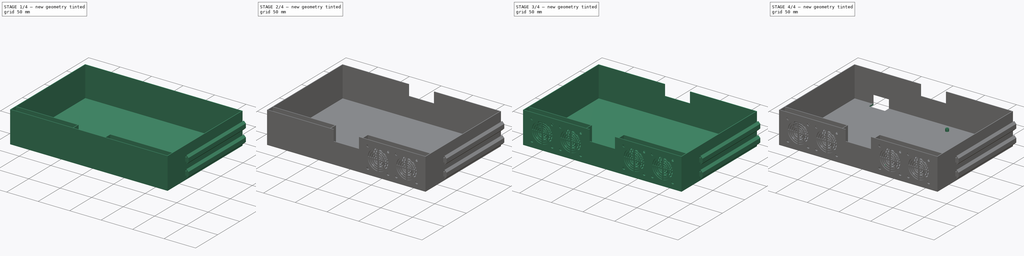
[diagram: build sequence overview — one tinted view per stage of 4, left to right]
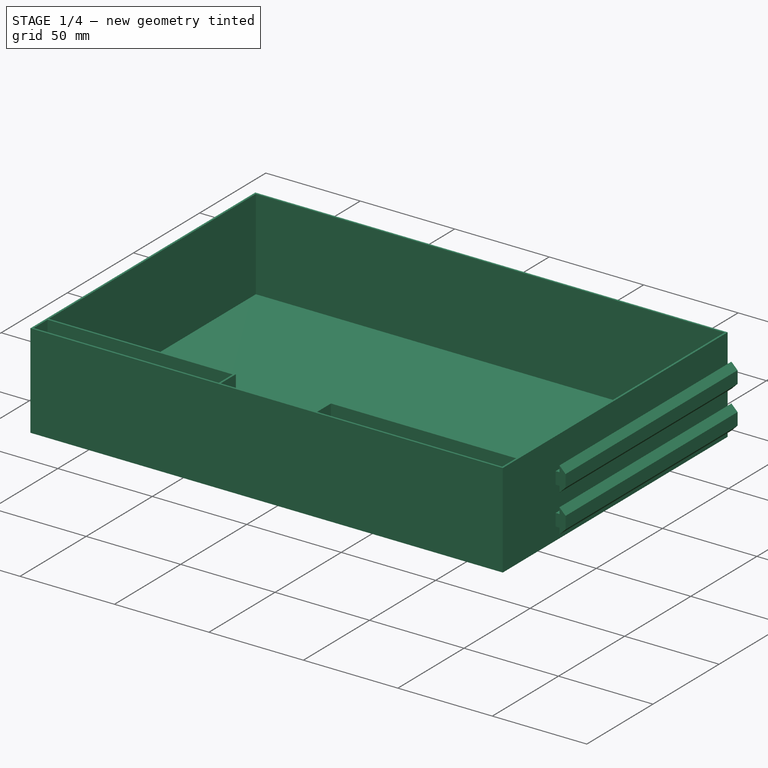
[diagram: stage 1 of 4 — iso view after this stage's code; geometry added in this stage tinted green]
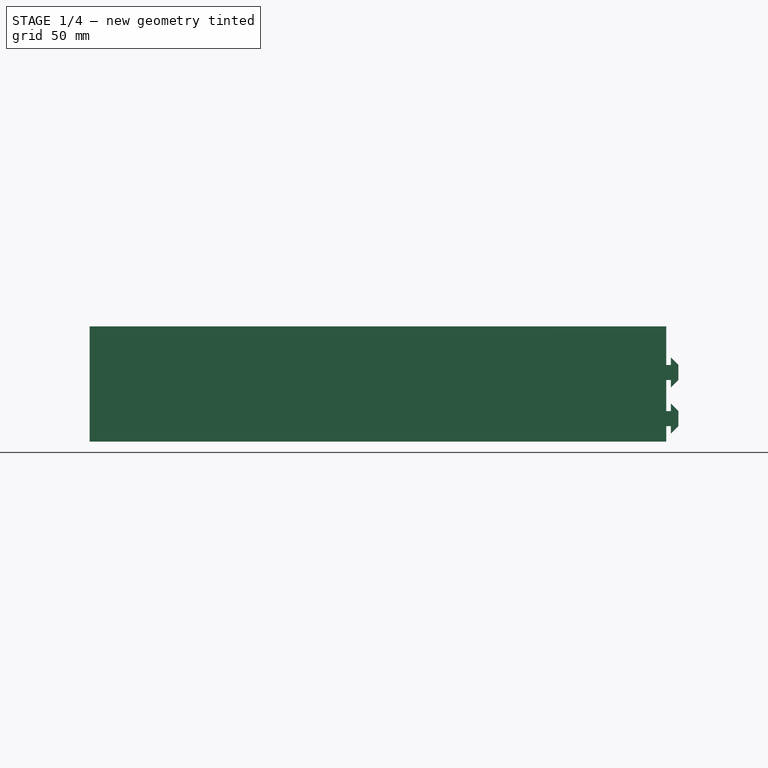
[diagram: stage 1 of 4 — front view after this stage's code; geometry added in this stage tinted green]
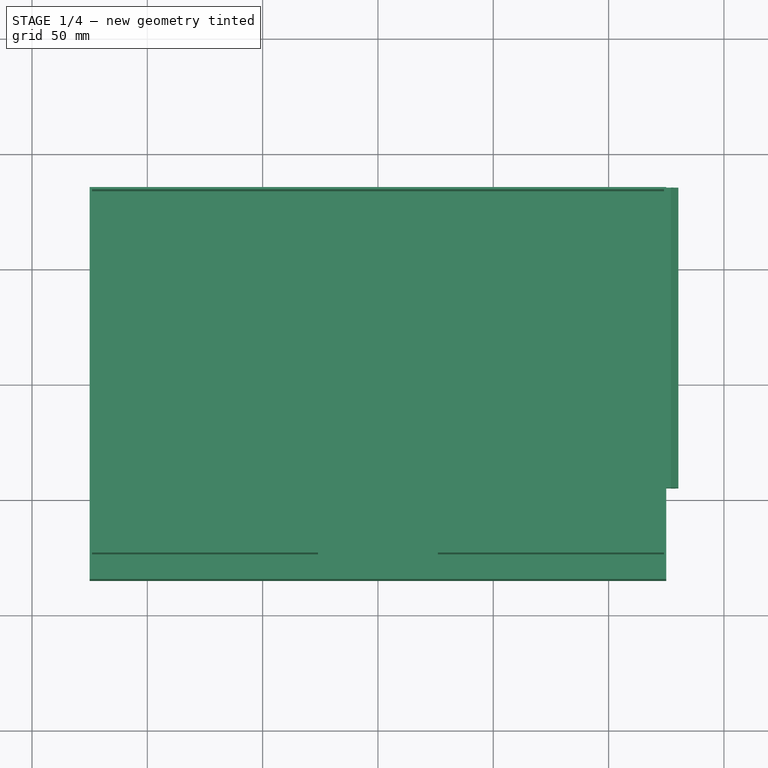
[diagram: stage 1 of 4 — top view after this stage's code; geometry added in this stage tinted green]
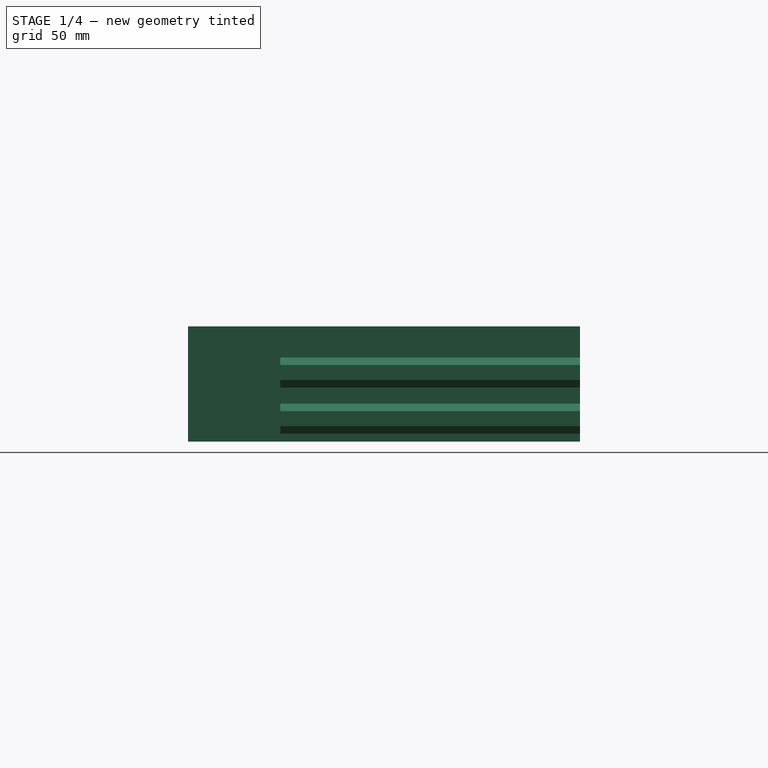
[diagram: stage 1 of 4 — right view after this stage's code; geometry added in this stage tinted green]
FCSTD DOCUMENT  (FreeCAD 0.18R16146 (Git))
Label: skr_pro_case
License: All rights reserved
LicenseURL: http://en.wikipedia.org/wiki/All_rights_reserved
objects: Sketcher::SketchObject×9, PartDesign::Pocket×5, PartDesign::Pad×4, PartDesign::Mirrored×3, PartDesign::Body×1
note: 31 computed .brp shape members not serialized (recipe doc carries the construction recipe); baked Part::Feature solids carry a one-line shape summary decoded from their .brp

FEATURE [Sketcher::SketchObject] Sketch010  label="Base_plate"
  MapMode = 5
  Support = -> [XY_Plane001]
  sketch-geometry (8):
    g0: LineSegment StartX=-125 StartY=-85 StartZ=0 EndX=125 EndY=-85 EndZ=0
    g1: LineSegment StartX=125 StartY=-85 StartZ=0 EndX=125 EndY=85 EndZ=0
    g2: LineSegment StartX=125 StartY=85 StartZ=0 EndX=-125 EndY=85 EndZ=0
    g3: LineSegment StartX=-125 StartY=85 StartZ=0 EndX=-125 EndY=-85 EndZ=0
    g4: LineSegment [constr] StartX=-20 StartY=-85 StartZ=0 EndX=20 EndY=-85 EndZ=0
    g5: LineSegment [constr] StartX=20 StartY=-85 StartZ=0 EndX=20 EndY=85 EndZ=0
    g6: LineSegment [constr] StartX=20 StartY=85 StartZ=0 EndX=-20 EndY=85 EndZ=0
    g7: LineSegment [constr] StartX=-20 StartY=85 StartZ=0 EndX=-20 EndY=-85 EndZ=0
  constraints (24):
    c: Coincident(g0,g1)
    c: Coincident(g1,g2)
    c: Coincident(g2,g3)
    c: Coincident(g3,g0)
    c: Horizontal(g0)
    c: Horizontal(g2)
    c: Vertical(g1)
    c: Vertical(g3)
    c: Distance(g3) = 170
    c: Distance(g0) = 250
    c: Distance(g-1,g1) = 125
    c: Distance(g-1,g2) = 85
    c: Coincident(g4,g5)
    c: Coincident(g5,g6)
    c: Coincident(g6,g7)
    c: Coincident(g7,g4)
    c: Horizontal(g4)
    c: Horizontal(g6)
    c: Vertical(g5)
    c: Vertical(g7)
    c: Distance(g6) = 40
    c: Distance(g5,g1) = 105
    c: Equal(g7,g3)
    c: Distance(g-1,g4) = 85
FEATURE [Sketcher::SketchObject] Sketch  label="Mount"
  MapMode = 5
  Placement = pos=(0,85,0) rot=(0,0.707107,0.707107;3.14159rad)
  sketch-geometry (36):
    g0: LineSegment [constr] StartX=-125 StartY=0 StartZ=0 EndX=-125 EndY=20 EndZ=0
    g1: LineSegment [constr] StartX=-125 StartY=0 StartZ=0 EndX=-135 EndY=10 EndZ=0
    g2: LineSegment [constr] StartX=-135 StartY=0 StartZ=0 EndX=-135 EndY=10 EndZ=0
    g3: LineSegment [constr] StartX=-135 StartY=10 StartZ=0 EndX=-135 EndY=20 EndZ=0
    g4: LineSegment [constr] StartX=-125 StartY=0 StartZ=0 EndX=-127 EndY=0 EndZ=0
    g5: LineSegment [constr] StartX=-127 StartY=0 StartZ=0 EndX=-135 EndY=0 EndZ=0
    g6: LineSegment [constr] StartX=-127 StartY=0 StartZ=0 EndX=-127 EndY=20 EndZ=0
    g7: LineSegment [constr] StartX=-131 StartY=6 StartZ=0 EndX=-131 EndY=14 EndZ=0
    g8: LineSegment [constr] StartX=-131 StartY=14 StartZ=0 EndX=-131 EndY=20 EndZ=0
    g9: LineSegment [constr] StartX=-131 StartY=14 StartZ=0 EndX=-127 EndY=18 EndZ=0
    g10: LineSegment StartX=-125 StartY=13.25 StartZ=0 EndX=-127 EndY=13.25 EndZ=0
    g11: LineSegment StartX=-127 StartY=13.25 StartZ=0 EndX=-127 EndY=16.5 EndZ=0
    g12: LineSegment StartX=-127 StartY=16.5 StartZ=0 EndX=-130.25 EndY=13.25 EndZ=0
    g13: LineSegment StartX=-130.25 StartY=13.25 StartZ=0 EndX=-130.25 EndY=6.75 EndZ=0
    g14: LineSegment StartX=-130.25 StartY=6.75 StartZ=0 EndX=-127 EndY=3.5 EndZ=0
    g15: LineSegment StartX=-127 StartY=3.5 StartZ=0 EndX=-127 EndY=6.75 EndZ=0
    g16: LineSegment StartX=-127 StartY=6.75 StartZ=0 EndX=-125 EndY=6.75 EndZ=0
    g17: LineSegment StartX=-125 StartY=6.75 StartZ=0 EndX=-125 EndY=13.25 EndZ=0
    g18: LineSegment [constr] StartX=-125 StartY=20 StartZ=0 EndX=-125 EndY=40 EndZ=0
    g19: LineSegment [constr] StartX=-125 StartY=20 StartZ=0 EndX=-135 EndY=30 EndZ=0
    g20: LineSegment [constr] StartX=-135 StartY=20 StartZ=0 EndX=-135 EndY=30 EndZ=0
    g21: LineSegment [constr] StartX=-135 StartY=30 StartZ=0 EndX=-135 EndY=40 EndZ=0
    g22: LineSegment [constr] StartX=-125 StartY=20 StartZ=0 EndX=-127 EndY=20 EndZ=0
    g23: LineSegment [constr] StartX=-127 StartY=20 StartZ=0 EndX=-135 EndY=20 EndZ=0
    g24: LineSegment [constr] StartX=-127 StartY=20 StartZ=0 EndX=-127 EndY=40 EndZ=0
    g25: LineSegment [constr] StartX=-131 StartY=26 StartZ=0 EndX=-131 EndY=34 EndZ=0
    g26: LineSegment [constr] StartX=-131 StartY=34 StartZ=0 EndX=-131 EndY=40 EndZ=0
    g27: LineSegment [constr] StartX=-131 StartY=34 StartZ=0 EndX=-127 EndY=38 EndZ=0
    g28: LineSegment StartX=-125 StartY=33.25 StartZ=0 EndX=-127 EndY=33.25 EndZ=0
    g29: LineSegment StartX=-127 StartY=33.25 StartZ=0 EndX=-127 EndY=36.5 EndZ=0
    g30: LineSegment StartX=-127 StartY=36.5 StartZ=0 EndX=-130.25 EndY=33.25 EndZ=0
    g31: LineSegment StartX=-130.25 StartY=33.25 StartZ=0 EndX=-130.25 EndY=26.75 EndZ=0
    g32: LineSegment StartX=-130.25 StartY=26.75 StartZ=0 EndX=-127 EndY=23.5 EndZ=0
    g33: LineSegment StartX=-127 StartY=23.5 StartZ=0 EndX=-127 EndY=26.75 EndZ=0
    g34: LineSegment StartX=-127 StartY=26.75 StartZ=0 EndX=-125 EndY=26.75 EndZ=0
    g35: LineSegment StartX=-125 StartY=26.75 StartZ=0 EndX=-125 EndY=33.25 EndZ=0
  constraints (109):
    c: Vertical(g0)
    c: Distance(g0) = 20
    c: Coincident(g0,g1)
    c: Angle(g1,g0) = -0.785398
    c: Coincident(g2,g3)
    c: Vertical(g2)
    c: Vertical(g3)
    c: Distance(g2) = 10
    c: Distance(g3) = 10
    c: PointOnObject(g1,g2)
    c: Coincident(g4,g5)
    c: Horizontal(g4)
    c: Horizontal(g5)
    c: Distance(g4) = 2
    c: Distance(g5) = 8
    c: Coincident(g0,g4)
    c: Coincident(g2,g5)
    c: Equal(g6,g0)
    c: Vertical(g6)
    c: Coincident(g6,g4)
    c: PointOnObject(g7,g1)
    c: Coincident(g7,g8)
    c: Distance(g7,g0) = 6
    c: Vertical(g7)
    c: Vertical(g8)
    c: Distance(g7) = 8
    c: Distance(g8) = 6
    c: Coincident(g9,g7)
    c: PointOnObject(g9,g6)
    c: Coincident(g10,g11)
    c: Coincident(g11,g12)
    c: Coincident(g12,g13)
    c: Coincident(g13,g14)
    c: Coincident(g14,g15)
    c: Coincident(g15,g16)
    c: Coincident(g16,g17)
    c: Coincident(g17,g10)
    c: Vertical(g17)
    c: Vertical(g13)
    c: Vertical(g11)
    c: Vertical(g15)
    c: Horizontal(g16)
    c: Horizontal(g10)
    c: Parallel(g14,g1)
    c: Parallel(g9,g12)
    c: Distance(g10) = 2
    c: Equal(g10,g16)
    c: DistanceY(g7,g13) = 0.75
    c: Distance(g14,g0) = 2
    c: DistanceX(g7,g13) = 0.75
    c: Equal(g17,g13)
    c: DistanceY(g12,g7) = 0.75
    c: DistanceY(g7,g15) = 0.75
    c: Angle(g9,g8) = 0.785398
    c: Vertical(g18)
    c: Equal(g0,g18) = 20
    c: Coincident(g18,g19)
    c: Angle(g19,g18) = -0.785398
    c: Coincident(g20,g21)
    c: Vertical(g20)
    c: Vertical(g21)
    c: Equal(g2,g20) = 10
    c: Equal(g3,g21) = 10
    c: PointOnObject(g19,g20)
    c: Coincident(g22,g23)
    c: Horizontal(g22)
    c: Horizontal(g23)
    c: Equal(g4,g22) = 2
    c: Equal(g5,g23) = 8
    c: Coincident(g18,g22)
    c: Coincident(g20,g23)
    c: Equal(g24,g18)
    c: Vertical(g24)
    c: Coincident(g24,g22)
    c: PointOnObject(g25,g19)
    c: Coincident(g25,g26)
    c: Distance(g25,g18) = 6
    c: Vertical(g25)
    c: Vertical(g26)
    c: Equal(g7,g25) = 8
    c: Equal(g8,g26) = 6
    c: Coincident(g27,g25)
    c: PointOnObject(g27,g24)
    c: Coincident(g28,g29)
    c: Coincident(g29,g30)
    c: Coincident(g30,g31)
    c: Coincident(g31,g32)
    c: Coincident(g32,g33)
    c: Coincident(g33,g34)
    c: Coincident(g34,g35)
    c: Coincident(g35,g28)
    c: Vertical(g35)
    c: Vertical(g31)
    c: Vertical(g29)
    c: Vertical(g33)
    c: Horizontal(g34)
    c: Horizontal(g28)
    c: Parallel(g32,g19)
    c: Parallel(g27,g30)
    c: Equal(g10,g28) = 2
    c: Equal(g28,g34)
    c: DistanceY(g25,g31) = 0.75
    c: Distance(g32,g18) = 2
    c: DistanceX(g25,g31) = 0.75
    c: Equal(g35,g31)
    c: DistanceY(g30,g25) = 0.75
    c: DistanceY(g25,g33) = 0.75
    c: Angle(g27,g26) = 0.785398
    c: Coincident(g0,g18)
FEATURE [PartDesign::Pad] Pad  label="Pad_base_plate"
  Length = 2
  Length2 = 100
  Profile = -> Sketch010
  Type = 0
FEATURE [Sketcher::SketchObject] Sketch011  label="Inner_walls"
  ExternalGeometry = -> [Pad]
  MapMode = 5
  Placement = pos=(0,0,0) rot=(1,0,0;3.14159rad)
  sketch-geometry (20):
    g0: LineSegment StartX=-125 StartY=85 StartZ=0 EndX=125 EndY=85 EndZ=0
    g1: LineSegment StartX=125 StartY=85 StartZ=0 EndX=125 EndY=-85 EndZ=0
    g2: LineSegment StartX=125 StartY=-85 StartZ=0 EndX=-125 EndY=-85 EndZ=0
    g3: LineSegment StartX=-125 StartY=-85 StartZ=0 EndX=-125 EndY=85 EndZ=0
    g4: LineSegment StartX=-124 StartY=73.5 StartZ=0 EndX=-26 EndY=73.5 EndZ=0
    g5: LineSegment StartX=-26 StartY=73.5 StartZ=0 EndX=-26 EndY=84 EndZ=0
    g6: LineSegment StartX=-26 StartY=84 StartZ=0 EndX=-124 EndY=84 EndZ=0
    g7: LineSegment StartX=-124 StartY=84 StartZ=0 EndX=-124 EndY=73.5 EndZ=0
    g8: LineSegment StartX=26 StartY=73.5 StartZ=0 EndX=124 EndY=73.5 EndZ=0
    g9: LineSegment StartX=124 StartY=73.5 StartZ=0 EndX=124 EndY=84 EndZ=0
    g10: LineSegment StartX=124 StartY=84 StartZ=0 EndX=26 EndY=84 EndZ=0
    g11: LineSegment StartX=26 StartY=84 StartZ=0 EndX=26 EndY=73.5 EndZ=0
    g12: LineSegment StartX=-124 StartY=72.5 StartZ=0 EndX=-25 EndY=72.5 EndZ=0
    g13: LineSegment StartX=-25 StartY=72.5 StartZ=0 EndX=-25 EndY=84 EndZ=0
    g14: LineSegment StartX=-25 StartY=84 StartZ=0 EndX=25 EndY=84 EndZ=0
    g15: LineSegment StartX=25 StartY=84 StartZ=0 EndX=25 EndY=72.5 EndZ=0
    g16: LineSegment StartX=25 StartY=72.5 StartZ=0 EndX=124 EndY=72.5 EndZ=0
    g17: LineSegment StartX=124 StartY=72.5 StartZ=0 EndX=124 EndY=-84 EndZ=0
    g18: LineSegment StartX=124 StartY=-84 StartZ=0 EndX=-124 EndY=-84 EndZ=0
    g19: LineSegment StartX=-124 StartY=-84 StartZ=0 EndX=-124 EndY=72.5 EndZ=0
  constraints (58):
    c: Coincident(g3,g2)
    c: Coincident(g0,g3)
    c: Coincident(g19,g18)
    c: Coincident(g19,g12)
    c: Coincident(g4,g7)
    c: Coincident(g6,g7)
    c: Coincident(g4,g5)
    c: Coincident(g5,g6)
    c: Coincident(g13,g12)
    c: Coincident(g14,g13)
    c: Coincident(g16,g15)
    c: Coincident(g14,g15)
    c: Coincident(g11,g8)
    c: Coincident(g10,g11)
    c: Coincident(g18,g17)
    c: Coincident(g17,g16)
    c: Coincident(g1,g2)
    c: Coincident(g0,g1)
    c: Coincident(g9,g8)
    c: Coincident(g10,g9)
    c: Distance(g6,g3) = 1
    c: Distance(g6,g0) = 1
    c: Distance(g12,g3) = 1
    c: Distance(g4,g13) = 1
    c: Distance(g5) = 10.5
    c: Equal(g5,g11)
    c: Equal(g13,g15)
    c: Distance(g14) = 50
    c: Equal(g4,g8)
    c: Equal(g16,g12)
    c: Vertical(g15)
    c: Vertical(g11)
    c: Distance(g14,g11) = 1
    c: Vertical(g9)
    c: Distance(g9,g0) = 1
    c: Distance(g9,g1) = 1
    c: Vertical(g1)
    c: Horizontal(g8)
    c: Horizontal(g16)
    c: Horizontal(g10)
    c: Horizontal(g0)
    c: Vertical(g17)
    c: Distance(g16,g1) = 1
    c: Horizontal(g18)
    c: Horizontal(g2)
    c: Distance(g17,g2) = 1
    c: Vertical(g3)
    c: Vertical(g19)
    c: Vertical(g7)
    c: Horizontal(g4)
    c: Horizontal(g12)
    c: Horizontal(g6)
    c: Vertical(g5)
    c: Distance(g4,g12) = 1
    c: Coincident(g-5,g0)
    c: Coincident(g-7,g2)
    c: Horizontal(g14)
    c: Distance(g13,g0) = 1
FEATURE [PartDesign::Pad] Pad001  label="Pad_inner_walls"
  BaseFeature = -> Pad
  Length = 50
  Length2 = 100
  Profile = -> Sketch011
  Reversed = true
  Type = 0
FEATURE [PartDesign::Pad] Pad002  label="Pad_mount"
  BaseFeature = -> Pad001
  Length = 130
  Length2 = 100
  Profile = -> Sketch
  Reversed = true
  Type = 0
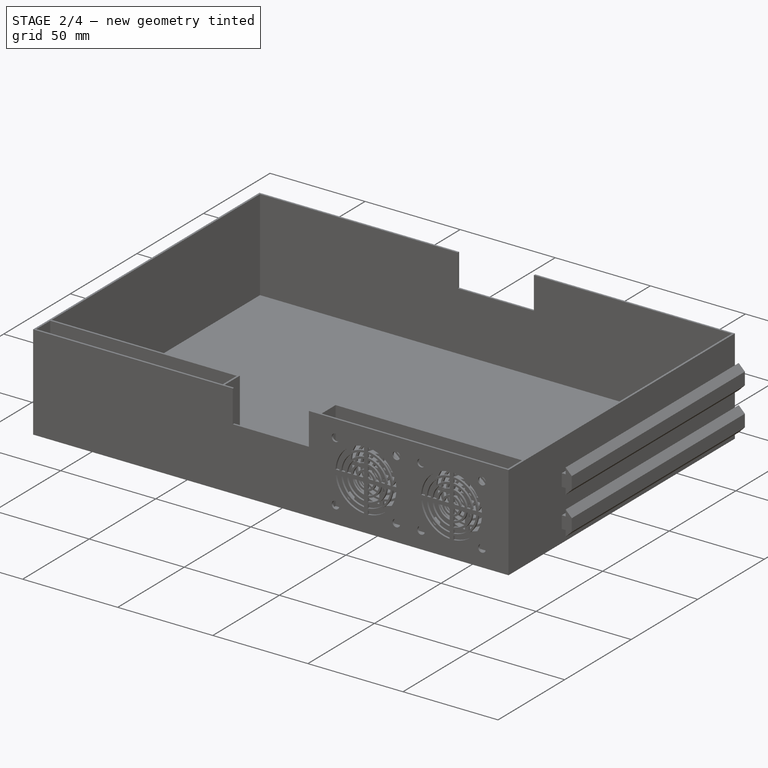
[diagram: stage 2 of 4 — iso view after this stage's code; geometry added in this stage tinted green]
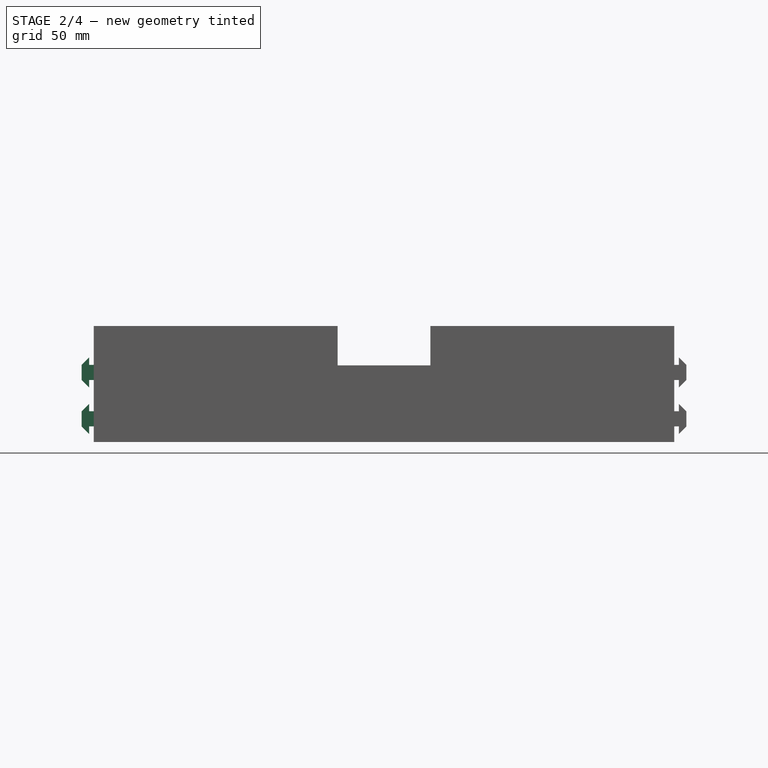
[diagram: stage 2 of 4 — front view after this stage's code; geometry added in this stage tinted green]
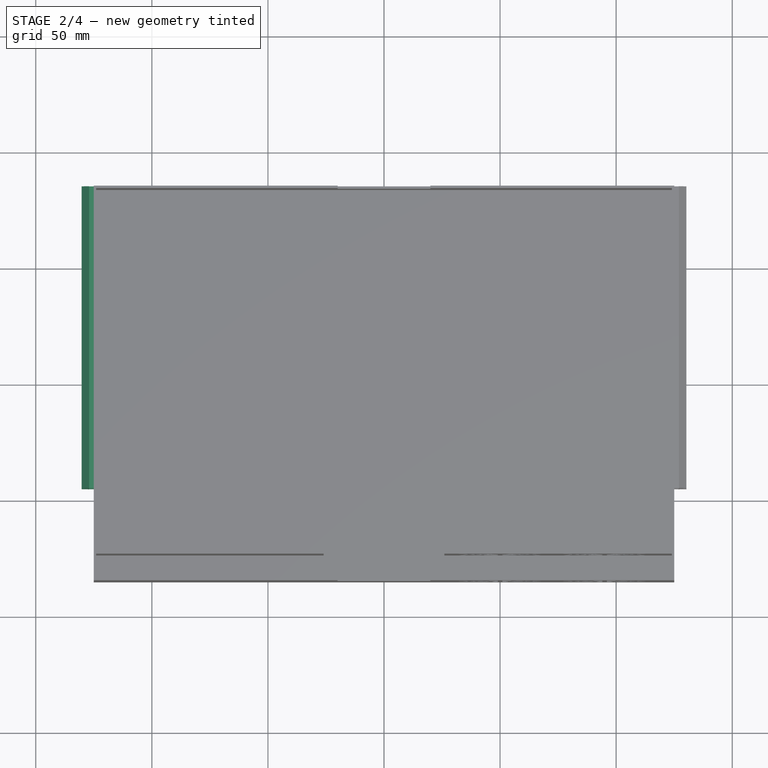
[diagram: stage 2 of 4 — top view after this stage's code; geometry added in this stage tinted green]
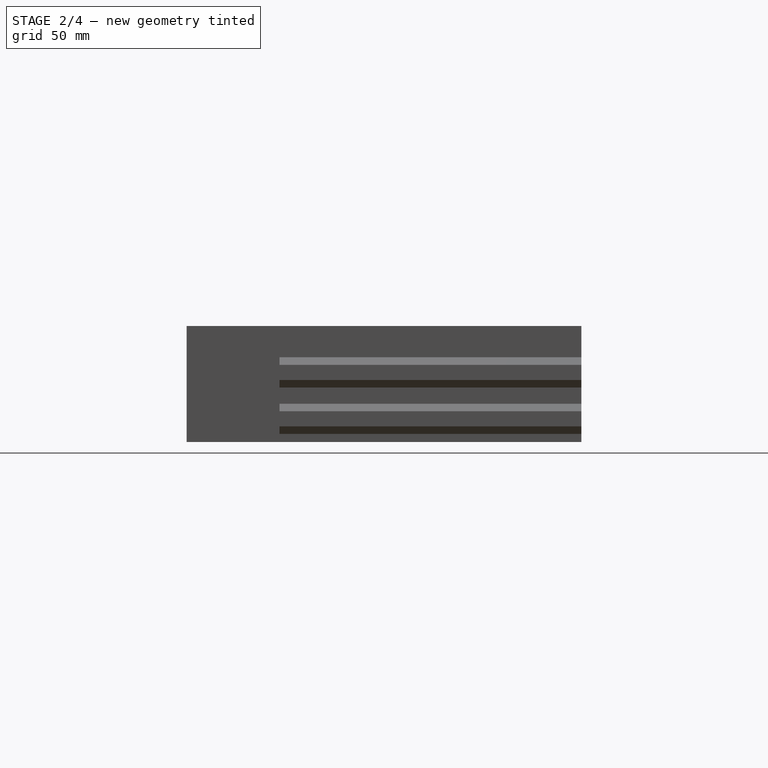
[diagram: stage 2 of 4 — right view after this stage's code; geometry added in this stage tinted green]
FEATURE [PartDesign::Mirrored] Mirrored  label="Mirrored_mount"
  BaseFeature = -> Pad002
  MirrorPlane = -> YZ_Plane001
  Originals = -> [Pad002]
FEATURE [Sketcher::SketchObject] Sketch018  label="y_axis"
  ExternalGeometry = -> [Mirrored]
  MapMode = 5
  Placement = pos=(0,-85,0) rot=(1,0,0;1.5708rad)
  Support = -> [Mirrored]
  sketch-geometry (4):
    g0: LineSegment StartX=-20 StartY=50 StartZ=0 EndX=20 EndY=50 EndZ=0
    g1: LineSegment StartX=20 StartY=50 StartZ=0 EndX=20 EndY=33 EndZ=0
    g2: LineSegment StartX=20 StartY=33 StartZ=0 EndX=-20 EndY=33 EndZ=0
    g3: LineSegment StartX=-20 StartY=33 StartZ=0 EndX=-20 EndY=50 EndZ=0
  constraints (12):
    c: DistanceX(g2,g1) = 40
    c: Coincident(g0,g1)
    c: Coincident(g1,g2)
    c: Coincident(g2,g3)
    c: Coincident(g3,g0)
    c: Horizontal(g0)
    c: Horizontal(g2)
    c: Vertical(g1)
    c: Vertical(g3)
    c: DistanceX(g-1,g0) = 20
    c: DistanceY(g-1,g1) = 33
    c: PointOnObject(g0,g-3)
FEATURE [PartDesign::Pocket] Pocket  label="Pocket_Y_AXIS"
  BaseFeature = -> Mirrored
  Length = 5
  Length2 = 100
  Profile = -> Sketch018
  Type = 1
FEATURE [Sketcher::SketchObject] Sketch019  label="fan_holes"
  ExternalGeometry = -> [Pocket]
  MapMode = 2
  Placement = pos=(0,-85,0) rot=(1,0,0;1.5708rad)
  sketch-geometry (200):
    g0: LineSegment [constr] StartX=75 StartY=5 StartZ=0 EndX=115 EndY=5 EndZ=0
    g1: LineSegment [constr] StartX=115 StartY=5 StartZ=0 EndX=115 EndY=45 EndZ=0
    g2: LineSegment [constr] StartX=115 StartY=45 StartZ=0 EndX=75 EndY=45 EndZ=0
    g3: LineSegment [constr] StartX=75 StartY=45 StartZ=0 EndX=75 EndY=5 EndZ=0
    g4: LineSegment [constr] StartX=79 StartY=9 StartZ=0 EndX=111 EndY=9 EndZ=0
    g5: LineSegment [constr] StartX=111 StartY=9 StartZ=0 EndX=111 EndY=41 EndZ=0
    g6: LineSegment [constr] StartX=111 StartY=41 StartZ=0 EndX=79 EndY=41 EndZ=0
    g7: LineSegment [constr] StartX=79 StartY=41 StartZ=0 EndX=79 EndY=9 EndZ=0
    g8: Circle CenterX=79 CenterY=41 CenterZ=0 NormalX=0 NormalY=0 NormalZ=1 AngleXU=0 Radius=2
    g9: Circle CenterX=111 CenterY=41 CenterZ=0 NormalX=0 NormalY=0 NormalZ=1 AngleXU=0 Radius=2
    g10: Circle CenterX=111 CenterY=9 CenterZ=0 NormalX=0 NormalY=0 NormalZ=1 AngleXU=0 Radius=2
    g11: Circle CenterX=79 CenterY=9 CenterZ=0 NormalX=0 NormalY=0 NormalZ=1 AngleXU=0 Radius=2
    g12: ArcOfCircle CenterX=95 CenterY=25 CenterZ=0 NormalX=0 NormalY=0 NormalZ=1 AngleXU=0 Radius=16 StartAngle=3.20413 EndAngle=4.64985
    g13: ArcOfCircle CenterX=95 CenterY=25 CenterZ=0 NormalX=0 NormalY=0 NormalZ=1 AngleXU=0 Radius=14 StartAngle=3.21308 EndAngle=4.6409
    g14: LineSegment [constr] StartX=79 StartY=26 StartZ=0 EndX=111 EndY=26 EndZ=0
    g15: LineSegment [constr] StartX=111 StartY=26 StartZ=0 EndX=111 EndY=24 EndZ=0
    g16: LineSegment [constr] StartX=111 StartY=24 StartZ=0 EndX=79 EndY=24 EndZ=0
    g17: LineSegment [constr] StartX=79 StartY=24 StartZ=0 EndX=79 EndY=26 EndZ=0
    g18: ArcOfCircle CenterX=95 CenterY=25 CenterZ=0 NormalX=0 NormalY=0 NormalZ=1 AngleXU=0 Radius=14 StartAngle=0.0714894 EndAngle=1.49931
    g19: LineSegment StartX=79.0313 StartY=26 StartZ=0 EndX=81.0358 EndY=26 EndZ=0
    g20: LineSegment StartX=79.0313 StartY=24 StartZ=0 EndX=81.0358 EndY=24 EndZ=0
    g21: ArcOfCircle CenterX=95 CenterY=25 CenterZ=0 NormalX=0 NormalY=0 NormalZ=1 AngleXU=0 Radius=16 StartAngle=0.0625408 EndAngle=1.50826
    g22: LineSegment StartX=108.964 StartY=26 StartZ=0 EndX=110.969 EndY=26 EndZ=0
    g23: LineSegment StartX=108.964 StartY=24 StartZ=0 EndX=110.969 EndY=24 EndZ=0
    g24: LineSegment [constr] StartX=96 StartY=41 StartZ=0 EndX=94 EndY=41 EndZ=0
    g25: LineSegment [constr] StartX=94 StartY=41 StartZ=0 EndX=94 EndY=9 EndZ=0
    g26: LineSegment [constr] StartX=94 StartY=9 StartZ=0 EndX=96 EndY=9 EndZ=0
    g27: LineSegment [constr] StartX=96 StartY=9 StartZ=0 EndX=96 EndY=41 EndZ=0
    g28: ArcOfCircle CenterX=95 CenterY=25 CenterZ=0 NormalX=0 NormalY=0 NormalZ=1 AngleXU=0 Radius=16 StartAngle=1.63334 EndAngle=3.07905
    g29: ArcOfCircle CenterX=95 CenterY=25 CenterZ=0 NormalX=0 NormalY=0 NormalZ=1 AngleXU=0 Radius=14 StartAngle=1.64229 EndAngle=3.0701
    g30: ArcOfCircle CenterX=95 CenterY=25 CenterZ=0 NormalX=0 NormalY=0 NormalZ=1 AngleXU=0 Radius=14 StartAngle=4.78388 EndAngle=6.2117
    g31: ArcOfCircle CenterX=95 CenterY=25 CenterZ=0 NormalX=0 NormalY=0 NormalZ=1 AngleXU=0 Radius=16 StartAngle=4.77493 EndAngle=6.22064
    g32: LineSegment StartX=94 StartY=9.03128 StartZ=0 EndX=94 EndY=11.0358 EndZ=0
    g33: LineSegment StartX=96 StartY=11.0358 StartZ=0 EndX=96 EndY=9.03128 EndZ=0
    g34: LineSegment StartX=94 StartY=38.9642 StartZ=0 EndX=94 EndY=40.9687 EndZ=0
    g35: LineSegment StartX=96 StartY=40.9687 StartZ=0 EndX=96 EndY=38.9642 EndZ=0
    g36: ArcOfCircle CenterX=95 CenterY=25 CenterZ=0 NormalX=0 NormalY=0 NormalZ=1 AngleXU=0 Radius=13 StartAngle=1.6478 EndAngle=3.06459
    g37: ArcOfCircle CenterX=95 CenterY=25 CenterZ=0 NormalX=0 NormalY=0 NormalZ=1 AngleXU=0 Radius=11 StartAngle=1.66183 EndAngle=3.05056
    g38: ArcOfCircle CenterX=95 CenterY=25 CenterZ=0 NormalX=0 NormalY=0 NormalZ=1 AngleXU=0 Radius=13 StartAngle=0.0769991 EndAngle=1.4938
    g39: ArcOfCircle CenterX=95 CenterY=25 CenterZ=0 NormalX=0 NormalY=0 NormalZ=1 AngleXU=0 Radius=11 StartAngle=0.0910348 EndAngle=1.47976
    g40: ArcOfCircle CenterX=95 CenterY=25 CenterZ=0 NormalX=0 NormalY=0 NormalZ=1 AngleXU=0 Radius=11 StartAngle=4.80342 EndAngle=6.19215
    g41: ArcOfCircle CenterX=95 CenterY=25 CenterZ=0 NormalX=0 NormalY=0 NormalZ=1 AngleXU=0 Radius=13 StartAngle=4.78939 EndAngle=6.20619
    g42: ArcOfCircle CenterX=95 CenterY=25 CenterZ=0 NormalX=0 NormalY=0 NormalZ=1 AngleXU=0 Radius=13 StartAngle=3.21859 EndAngle=4.63539
    g43: ArcOfCircle CenterX=95 CenterY=25 CenterZ=0 NormalX=0 NormalY=0 NormalZ=1 AngleXU=0 Radius=11 StartAngle=3.23263 EndAngle=4.62135
    g44: LineSegment StartX=82.0385 StartY=26 StartZ=0 EndX=84.0455 EndY=26 EndZ=0
    g45: LineSegment StartX=82.0385 StartY=24 StartZ=0 EndX=84.0455 EndY=24 EndZ=0
    g46: LineSegment StartX=105.954 StartY=26 StartZ=0 EndX=107.961 EndY=26 EndZ=0
    g47: LineSegment StartX=105.954 StartY=24 StartZ=0 EndX=107.961 EndY=24 EndZ=0
    g48: LineSegment StartX=94 StartY=35.9545 StartZ=0 EndX=94 EndY=37.9615 EndZ=0
    g49: LineSegment StartX=96 StartY=35.9545 StartZ=0 EndX=96 EndY=37.9615 EndZ=0
    g50: LineSegment StartX=94 StartY=12.0385 StartZ=0 EndX=94 EndY=14.0455 EndZ=0
    g51: LineSegment StartX=96 StartY=12.0385 StartZ=0 EndX=96 EndY=14.0455 EndZ=0
    g52: ArcOfCircle CenterX=95 CenterY=25 CenterZ=0 NormalX=0 NormalY=0 NormalZ=1 AngleXU=0 Radius=10 StartAngle=1.67096 EndAngle=3.04143
    g53: ArcOfCircle CenterX=95 CenterY=25 CenterZ=0 NormalX=0 NormalY=0 NormalZ=1 AngleXU=0 Radius=8 StartAngle=1.69612 EndAngle=3.01626
    g54: ArcOfCircle CenterX=95 CenterY=25 CenterZ=0 NormalX=0 NormalY=0 NormalZ=1 AngleXU=0 Radius=8 StartAngle=0.125328 EndAngle=1.44547
    g55: ArcOfCircle CenterX=95 CenterY=25 CenterZ=0 NormalX=0 NormalY=0 NormalZ=1 AngleXU=0 Radius=10 StartAngle=0.100167 EndAngle=1.47063
    g56: ArcOfCircle CenterX=95 CenterY=25 CenterZ=0 NormalX=0 NormalY=0 NormalZ=1 AngleXU=0 Radius=10 StartAngle=4.81256 EndAngle=6.18302
    g57: ArcOfCircle CenterX=95 CenterY=25 CenterZ=0 NormalX=0 NormalY=0 NormalZ=1 AngleXU=0 Radius=8 StartAngle=4.83772 EndAngle=6.15786
    g58: ArcOfCircle CenterX=95 CenterY=25 CenterZ=0 NormalX=0 NormalY=0 NormalZ=1 AngleXU=0 Radius=10 StartAngle=3.24176 EndAngle=4.61222
    g59: ArcOfCircle CenterX=95 CenterY=25 CenterZ=0 NormalX=0 NormalY=0 NormalZ=1 AngleXU=0 Radius=8 StartAngle=3.26692 EndAngle=4.58706
    g60: ArcOfCircle CenterX=95 CenterY=25 CenterZ=0 NormalX=0 NormalY=0 NormalZ=1 AngleXU=0 Radius=7 StartAngle=1.71414 EndAngle=2.99825
    g61: ArcOfCircle CenterX=95 CenterY=25 CenterZ=0 NormalX=0 NormalY=0 NormalZ=1 AngleXU=0 Radius=5 StartAngle=1.77215 EndAngle=2.94023
    g62: ArcOfCircle CenterX=95 CenterY=25 CenterZ=0 NormalX=0 NormalY=0 NormalZ=1 AngleXU=0 Radius=5 StartAngle=4.91375 EndAngle=6.08183
    g63: ArcOfCircle CenterX=95 CenterY=25 CenterZ=0 NormalX=0 NormalY=0 NormalZ=1 AngleXU=0 Radius=7 StartAngle=4.85574 EndAngle=6.13984
    g64: ArcOfCircle CenterX=95 CenterY=25 CenterZ=0 NormalX=0 NormalY=0 NormalZ=1 AngleXU=0 Radius=7 StartAngle=3.28494 EndAngle=4.56904
    g65: ArcOfCircle CenterX=95 CenterY=25 CenterZ=0 NormalX=0 NormalY=0 NormalZ=1 AngleXU=0 Radius=5 StartAngle=3.34295 EndAngle=4.51103
    g66: ArcOfCircle CenterX=95 CenterY=25 CenterZ=0 NormalX=0 NormalY=0 NormalZ=1 AngleXU=0 Radius=5 StartAngle=0.201358 EndAngle=1.36944
    g67: ArcOfCircle CenterX=95 CenterY=25 CenterZ=0 NormalX=0 NormalY=0 NormalZ=1 AngleXU=0 Radius=7 StartAngle=0.143348 EndAngle=1.42745
    g68: LineSegment StartX=88.0718 StartY=26 StartZ=0 EndX=90.101 EndY=26 EndZ=0
    g69: LineSegment StartX=88.0718 StartY=24 StartZ=0 EndX=90.101 EndY=24 EndZ=0
    g70: LineSegment StartX=85.0501 StartY=26 StartZ=0 EndX=87.0627 EndY=26 EndZ=0
    g71: LineSegment StartX=85.0501 StartY=24 StartZ=0 EndX=87.0627 EndY=24 EndZ=0
    g72: LineSegment StartX=99.899 StartY=26 StartZ=0 EndX=101.928 EndY=26 EndZ=0
    g73: LineSegment StartX=99.899 StartY=24 StartZ=0 EndX=101.928 EndY=24 EndZ=0
    g74: LineSegment StartX=102.937 StartY=26 StartZ=0 EndX=104.95 EndY=26 EndZ=0
    g75: LineSegment StartX=102.937 StartY=24 StartZ=0 EndX=104.95 EndY=24 EndZ=0
    g76: LineSegment StartX=94 StartY=29.899 StartZ=0 EndX=94 EndY=31.9282 EndZ=0
    g77: LineSegment StartX=94 StartY=32.9373 StartZ=0 EndX=94 EndY=34.9499 EndZ=0
    g78: LineSegment StartX=96 StartY=34.9499 StartZ=0 EndX=96 EndY=32.9373 EndZ=0
    g79: LineSegment StartX=96 StartY=31.9282 StartZ=0 EndX=96 EndY=29.899 EndZ=0
    g80: LineSegment StartX=94 StartY=15.0501 StartZ=0 EndX=94 EndY=17.0627 EndZ=0
    g81: LineSegment StartX=96 StartY=15.0501 StartZ=0 EndX=96 EndY=17.0627 EndZ=0
    g82: LineSegment StartX=96 StartY=18.0718 StartZ=0 EndX=96 EndY=20.101 EndZ=0
    g83: LineSegment StartX=94 StartY=18.0718 StartZ=0 EndX=94 EndY=20.101 EndZ=0
    g84: ArcOfCircle CenterX=95 CenterY=25 CenterZ=0 NormalX=0 NormalY=0 NormalZ=1 AngleXU=0 Radius=4 StartAngle=1.82348 EndAngle=2.88891
    g85: ArcOfCircle CenterX=95 CenterY=25 CenterZ=0 NormalX=0 NormalY=0 NormalZ=1 AngleXU=0 Radius=4 StartAngle=3.39427 EndAngle=4.45971
    g86: ArcOfCircle CenterX=95 CenterY=25 CenterZ=0 NormalX=0 NormalY=0 NormalZ=1 AngleXU=0 Radius=4 StartAngle=4.96507 EndAngle=6.03051
    g87: ArcOfCircle CenterX=95 CenterY=25 CenterZ=0 NormalX=0 NormalY=0 NormalZ=1 AngleXU=0 Radius=4 StartAngle=0.25268 EndAngle=1.31812
    g88: ArcOfCircle CenterX=95 CenterY=25 CenterZ=0 NormalX=0 NormalY=0 NormalZ=1 AngleXU=0 Radius=2 StartAngle=3.66519 EndAngle=4.18879
    g89: ArcOfCircle CenterX=95 CenterY=25 CenterZ=0 NormalX=0 NormalY=0 NormalZ=1 AngleXU=0 Radius=2 StartAngle=2.0944 EndAngle=2.61799
    g90: ArcOfCircle CenterX=95 CenterY=25 CenterZ=0 NormalX=0 NormalY=0 NormalZ=1 AngleXU=0 Radius=2 StartAngle=0.523599 EndAngle=1.0472
    g91: ArcOfCircle CenterX=95 CenterY=25 CenterZ=0 NormalX=0 NormalY=0 NormalZ=1 AngleXU=0 Radius=2 StartAngle=5.23599 EndAngle=5.75959
    g92: LineSegment StartX=91.127 StartY=26 StartZ=0 EndX=93.2679 EndY=26 EndZ=0
    g93: LineSegment StartX=94 StartY=26.7321 StartZ=0 EndX=94 EndY=28.873 EndZ=0
    g94: LineSegment StartX=96 StartY=28.873 StartZ=0 EndX=96 EndY=26.7321 EndZ=0
    g95: LineSegment StartX=96.7321 StartY=26 StartZ=0 EndX=98.873 EndY=26 EndZ=0
    g96: LineSegment StartX=98.873 StartY=24 StartZ=0 EndX=96.7321 EndY=24 EndZ=0
    g97: LineSegment StartX=96 StartY=21.127 StartZ=0 EndX=96 EndY=23.2679 EndZ=0
    g98: LineSegment StartX=94 StartY=23.2679 StartZ=0 EndX=94 EndY=21.127 EndZ=0
    g99: LineSegment StartX=91.127 StartY=24 StartZ=0 EndX=93.2679 EndY=24 EndZ=0
    g100: LineSegment [constr] StartX=30 StartY=5 StartZ=0 EndX=70 EndY=5 EndZ=0
    g101: LineSegment [constr] StartX=70 StartY=5 StartZ=0 EndX=70 EndY=45 EndZ=0
    g102: LineSegment [constr] StartX=70 StartY=45 StartZ=0 EndX=30 EndY=45 EndZ=0
    g103: LineSegment [constr] StartX=30 StartY=45 StartZ=0 EndX=30 EndY=5 EndZ=0
    g104: LineSegment [constr] StartX=34 StartY=9 StartZ=0 EndX=66 EndY=9 EndZ=0
    g105: LineSegment [constr] StartX=66 StartY=9 StartZ=0 EndX=66 EndY=41 EndZ=0
    g106: LineSegment [constr] StartX=66 StartY=41 StartZ=0 EndX=34 EndY=41 EndZ=0
    g107: LineSegment [constr] StartX=34 StartY=41 StartZ=0 EndX=34 EndY=9 EndZ=0
    g108: Circle CenterX=34 CenterY=41 CenterZ=0 NormalX=0 NormalY=0 NormalZ=1 AngleXU=0 Radius=2
    g109: Circle CenterX=66 CenterY=41 CenterZ=0 NormalX=0 NormalY=0 NormalZ=1 AngleXU=0 Radius=2
    g110: Circle CenterX=66 CenterY=9 CenterZ=0 NormalX=0 NormalY=0 NormalZ=1 AngleXU=0 Radius=2
    g111: Circle CenterX=34 CenterY=9 CenterZ=0 NormalX=0 NormalY=0 NormalZ=1 AngleXU=0 Radius=2
    g112: ArcOfCircle CenterX=50 CenterY=25 CenterZ=0 NormalX=0 NormalY=0 NormalZ=1 AngleXU=0 Radius=16 StartAngle=3.20413 EndAngle=4.64985
    g113: ArcOfCircle CenterX=50 CenterY=25 CenterZ=0 NormalX=0 NormalY=0 NormalZ=1 AngleXU=0 Radius=14 StartAngle=3.21308 EndAngle=4.6409
    g114: LineSegment [constr] StartX=34 StartY=26 StartZ=0 EndX=66 EndY=26 EndZ=0
    g115: LineSegment [constr] StartX=66 StartY=26 StartZ=0 EndX=66 EndY=24 EndZ=0
    g116: LineSegment [constr] StartX=66 StartY=24 StartZ=0 EndX=34 EndY=24 EndZ=0
    g117: LineSegment [constr] StartX=34 StartY=24 StartZ=0 EndX=34 EndY=26 EndZ=0
    g118: ArcOfCircle CenterX=50 CenterY=25 CenterZ=0 NormalX=0 NormalY=0 NormalZ=1 AngleXU=0 Radius=14 StartAngle=0.0714894 EndAngle=1.49931
    g119: LineSegment StartX=34.0313 StartY=26 StartZ=0 EndX=36.0358 EndY=26 EndZ=0
    g120: LineSegment StartX=34.0313 StartY=24 StartZ=0 EndX=36.0358 EndY=24 EndZ=0
    g121: ArcOfCircle CenterX=50 CenterY=25 CenterZ=0 NormalX=0 NormalY=0 NormalZ=1 AngleXU=0 Radius=16 StartAngle=0.0625408 EndAngle=1.50826
    g122: LineSegment StartX=63.9642 StartY=26 StartZ=0 EndX=65.9687 EndY=26 EndZ=0
    g123: LineSegment StartX=63.9642 StartY=24 StartZ=0 EndX=65.9687 EndY=24 EndZ=0
    g124: LineSegment [constr] StartX=51 StartY=41 StartZ=0 EndX=49 EndY=41 EndZ=0
    g125: LineSegment [constr] StartX=49 StartY=41 StartZ=0 EndX=49 EndY=9 EndZ=0
    g126: LineSegment [constr] StartX=49 StartY=9 StartZ=0 EndX=51 EndY=9 EndZ=0
    g127: LineSegment [constr] StartX=51 StartY=9 StartZ=0 EndX=51 EndY=41 EndZ=0
    g128: ArcOfCircle CenterX=50 CenterY=25 CenterZ=0 NormalX=0 NormalY=0 NormalZ=1 AngleXU=0 Radius=16 StartAngle=1.63334 EndAngle=3.07905
    g129: ArcOfCircle CenterX=50 CenterY=25 CenterZ=0 NormalX=0 NormalY=0 NormalZ=1 AngleXU=0 Radius=14 StartAngle=1.64229 EndAngle=3.0701
    g130: ArcOfCircle CenterX=50 CenterY=25 CenterZ=0 NormalX=0 NormalY=0 NormalZ=1 AngleXU=0 Radius=14 StartAngle=4.78388 EndAngle=6.2117
    g131: ArcOfCircle CenterX=50 CenterY=25 CenterZ=0 NormalX=0 NormalY=0 NormalZ=1 AngleXU=0 Radius=16 StartAngle=4.77493 EndAngle=6.22064
    g132: LineSegment StartX=49 StartY=9.03128 StartZ=0 EndX=49 EndY=11.0358 EndZ=0
    g133: LineSegment StartX=51 StartY=11.0358 StartZ=0 EndX=51 EndY=9.03128 EndZ=0
    g134: LineSegment StartX=49 StartY=38.9642 StartZ=0 EndX=49 EndY=40.9687 EndZ=0
    g135: LineSegment StartX=51 StartY=40.9687 StartZ=0 EndX=51 EndY=38.9642 EndZ=0
    g136: ArcOfCircle CenterX=50 CenterY=25 CenterZ=0 NormalX=0 NormalY=0 NormalZ=1 AngleXU=0 Radius=13 StartAngle=1.6478 EndAngle=3.06459
    g137: ArcOfCircle CenterX=50 CenterY=25 CenterZ=0 NormalX=0 NormalY=0 NormalZ=1 AngleXU=0 Radius=11 StartAngle=1.66183 EndAngle=3.05056
    g138: ArcOfCircle CenterX=50 CenterY=25 CenterZ=0 NormalX=0 NormalY=0 NormalZ=1 AngleXU=0 Radius=13 StartAngle=0.0769991 EndAngle=1.4938
    g139: ArcOfCircle CenterX=50 CenterY=25 CenterZ=0 NormalX=0 NormalY=0 NormalZ=1 AngleXU=0 Radius=11 StartAngle=0.0910348 EndAngle=1.47976
    g140: ArcOfCircle CenterX=50 CenterY=25 CenterZ=0 NormalX=0 NormalY=0 NormalZ=1 AngleXU=0 Radius=11 StartAngle=4.80342 EndAngle=6.19215
    g141: ArcOfCircle CenterX=50 CenterY=25 CenterZ=0 NormalX=0 NormalY=0 NormalZ=1 AngleXU=0 Radius=13 StartAngle=4.78939 EndAngle=6.20619
    g142: ArcOfCircle CenterX=50 CenterY=25 CenterZ=0 NormalX=0 NormalY=0 NormalZ=1 AngleXU=0 Radius=13 StartAngle=3.21859 EndAngle=4.63539
    g143: ArcOfCircle CenterX=50 CenterY=25 CenterZ=0 NormalX=0 NormalY=0 NormalZ=1 AngleXU=0 Radius=11 StartAngle=3.23263 EndAngle=4.62135
    g144: LineSegment StartX=37.0385 StartY=26 StartZ=0 EndX=39.0455 EndY=26 EndZ=0
    g145: LineSegment StartX=37.0385 StartY=24 StartZ=0 EndX=39.0455 EndY=24 EndZ=0
    g146: LineSegment StartX=60.9545 StartY=26 StartZ=0 EndX=62.9615 EndY=26 EndZ=0
    g147: LineSegment StartX=60.9545 StartY=24 StartZ=0 EndX=62.9615 EndY=24 EndZ=0
    g148: LineSegment StartX=49 StartY=35.9545 StartZ=0 EndX=49 EndY=37.9615 EndZ=0
    g149: LineSegment StartX=51 StartY=35.9545 StartZ=0 EndX=51 EndY=37.9615 EndZ=0
    g150: LineSegment StartX=49 StartY=12.0385 StartZ=0 EndX=49 EndY=14.0455 EndZ=0
    g151: LineSegment StartX=51 StartY=12.0385 StartZ=0 EndX=51 EndY=14.0455 EndZ=0
    g152: ArcOfCircle CenterX=50 CenterY=25 CenterZ=0 NormalX=0 NormalY=0 NormalZ=1 AngleXU=0 Radius=10 StartAngle=1.67096 EndAngle=3.04143
    g153: ArcOfCircle CenterX=50 CenterY=25 CenterZ=0 NormalX=0 NormalY=0 NormalZ=1 AngleXU=0 Radius=8 StartAngle=1.69612 EndAngle=3.01626
    g154: ArcOfCircle CenterX=50 CenterY=25 CenterZ=0 NormalX=0 NormalY=0 NormalZ=1 AngleXU=0 Radius=8 StartAngle=0.125328 EndAngle=1.44547
    g155: ArcOfCircle CenterX=50 CenterY=25 CenterZ=0 NormalX=0 NormalY=0 NormalZ=1 AngleXU=0 Radius=10 StartAngle=0.100167 EndAngle=1.47063
    g156: ArcOfCircle CenterX=50 CenterY=25 CenterZ=0 NormalX=0 NormalY=0 NormalZ=1 AngleXU=0 Radius=10 StartAngle=4.81256 EndAngle=6.18302
    g157: ArcOfCircle CenterX=50 CenterY=25 CenterZ=0 NormalX=0 NormalY=0 NormalZ=1 AngleXU=0 Radius=8 StartAngle=4.83772 EndAngle=6.15786
    g158: ArcOfCircle CenterX=50 CenterY=25 CenterZ=0 NormalX=0 NormalY=0 NormalZ=1 AngleXU=0 Radius=10 StartAngle=3.24176 EndAngle=4.61222
    g159: ArcOfCircle CenterX=50 CenterY=25 CenterZ=0 NormalX=0 NormalY=0 NormalZ=1 AngleXU=0 Radius=8 StartAngle=3.26692 EndAngle=4.58706
    g160: ArcOfCircle CenterX=50 CenterY=25 CenterZ=0 NormalX=0 NormalY=0 NormalZ=1 AngleXU=0 Radius=7 StartAngle=1.71414 EndAngle=2.99825
    g161: ArcOfCircle CenterX=50 CenterY=25 CenterZ=0 NormalX=0 NormalY=0 NormalZ=1 AngleXU=0 Radius=5 StartAngle=1.77215 EndAngle=2.94023
    g162: ArcOfCircle CenterX=50 CenterY=25 CenterZ=0 NormalX=0 NormalY=0 NormalZ=1 AngleXU=0 Radius=5 StartAngle=4.91375 EndAngle=6.08183
    g163: ArcOfCircle CenterX=50 CenterY=25 CenterZ=0 NormalX=0 NormalY=0 NormalZ=1 AngleXU=0 Radius=7 StartAngle=4.85574 EndAngle=6.13984
    g164: ArcOfCircle CenterX=50 CenterY=25 CenterZ=0 NormalX=0 NormalY=0 NormalZ=1 AngleXU=0 Radius=7 StartAngle=3.28494 EndAngle=4.56904
    g165: ArcOfCircle CenterX=50 CenterY=25 CenterZ=0 NormalX=0 NormalY=0 NormalZ=1 AngleXU=0 Radius=5 StartAngle=3.34295 EndAngle=4.51103
    g166: ArcOfCircle CenterX=50 CenterY=25 CenterZ=0 NormalX=0 NormalY=0 NormalZ=1 AngleXU=0 Radius=5 StartAngle=0.201358 EndAngle=1.36944
    g167: ArcOfCircle CenterX=50 CenterY=25 CenterZ=0 NormalX=0 NormalY=0 NormalZ=1 AngleXU=0 Radius=7 StartAngle=0.143348 EndAngle=1.42745
    g168: LineSegment StartX=43.0718 StartY=26 StartZ=0 EndX=45.101 EndY=26 EndZ=0
    g169: LineSegment StartX=43.0718 StartY=24 StartZ=0 EndX=45.101 EndY=24 EndZ=0
    g170: LineSegment StartX=40.0501 StartY=26 StartZ=0 EndX=42.0627 EndY=26 EndZ=0
    g171: LineSegment StartX=40.0501 StartY=24 StartZ=0 EndX=42.0627 EndY=24 EndZ=0
    g172: LineSegment StartX=54.899 StartY=26 StartZ=0 EndX=56.9282 EndY=26 EndZ=0
    g173: LineSegment StartX=54.899 StartY=24 StartZ=0 EndX=56.9282 EndY=24 EndZ=0
    g174: LineSegment StartX=57.9373 StartY=26 StartZ=0 EndX=59.9499 EndY=26 EndZ=0
    g175: LineSegment StartX=57.9373 StartY=24 StartZ=0 EndX=59.9499 EndY=24 EndZ=0
    g176: LineSegment StartX=49 StartY=29.899 StartZ=0 EndX=49 EndY=31.9282 EndZ=0
    g177: LineSegment StartX=49 StartY=32.9373 StartZ=0 EndX=49 EndY=34.9499 EndZ=0
    g178: LineSegment StartX=51 StartY=34.9499 StartZ=0 EndX=51 EndY=32.9373 EndZ=0
    g179: LineSegment StartX=51 StartY=31.9282 StartZ=0 EndX=51 EndY=29.899 EndZ=0
    g180: LineSegment StartX=49 StartY=15.0501 StartZ=0 EndX=49 EndY=17.0627 EndZ=0
    g181: LineSegment StartX=51 StartY=15.0501 StartZ=0 EndX=51 EndY=17.0627 EndZ=0
    g182: LineSegment StartX=51 StartY=18.0718 StartZ=0 EndX=51 EndY=20.101 EndZ=0
    g183: LineSegment StartX=49 StartY=18.0718 StartZ=0 EndX=49 EndY=20.101 EndZ=0
    g184: ArcOfCircle CenterX=50 CenterY=25 CenterZ=0 NormalX=0 NormalY=0 NormalZ=1 AngleXU=0 Radius=4 StartAngle=1.82348 EndAngle=2.88891
    g185: ArcOfCircle CenterX=50 CenterY=25 CenterZ=0 NormalX=0 NormalY=0 NormalZ=1 AngleXU=0 Radius=4 StartAngle=3.39427 EndAngle=4.45971
    g186: ArcOfCircle CenterX=50 CenterY=25 CenterZ=0 NormalX=0 NormalY=0 NormalZ=1 AngleXU=0 Radius=4 StartAngle=4.96507 EndAngle=6.03051
    g187: ArcOfCircle CenterX=50 CenterY=25 CenterZ=0 NormalX=0 NormalY=0 NormalZ=1 AngleXU=0 Radius=4 StartAngle=0.25268 EndAngle=1.31812
    g188: ArcOfCircle CenterX=50 CenterY=25 CenterZ=0 NormalX=0 NormalY=0 NormalZ=1 AngleXU=0 Radius=2 StartAngle=3.66519 EndAngle=4.18879
    g189: ArcOfCircle CenterX=50 CenterY=25 CenterZ=0 NormalX=0 NormalY=0 NormalZ=1 AngleXU=0 Radius=2 StartAngle=2.0944 EndAngle=2.61799
    g190: ArcOfCircle CenterX=50 CenterY=25 CenterZ=0 NormalX=0 NormalY=0 NormalZ=1 AngleXU=0 Radius=2 StartAngle=0.523599 EndAngle=1.0472
    g191: ArcOfCircle CenterX=50 CenterY=25 CenterZ=0 NormalX=0 NormalY=0 NormalZ=1 AngleXU=0 Radius=2 StartAngle=5.23599 EndAngle=5.75959
    g192: LineSegment StartX=46.127 StartY=26 StartZ=0 EndX=48.2679 EndY=26 EndZ=0
    g193: LineSegment StartX=49 StartY=26.7321 StartZ=0 EndX=49 EndY=28.873 EndZ=0
    g194: LineSegment StartX=51 StartY=28.873 StartZ=0 EndX=51 EndY=26.7321 EndZ=0
    g195: LineSegment StartX=51.7321 StartY=26 StartZ=0 EndX=53.873 EndY=26 EndZ=0
    g196: LineSegment StartX=53.873 StartY=24 StartZ=0 EndX=51.7321 EndY=24 EndZ=0
    g197: LineSegment StartX=51 StartY=21.127 StartZ=0 EndX=51 EndY=23.2679 EndZ=0
    g198: LineSegment StartX=49 StartY=23.2679 StartZ=0 EndX=49 EndY=21.127 EndZ=0
    g199: LineSegment StartX=46.127 StartY=24 StartZ=0 EndX=48.2679 EndY=24 EndZ=0
  constraints (594):
    c: Coincident(g0,g1)
    c: Coincident(g1,g2)
    c: Coincident(g2,g3)
    c: Coincident(g3,g0)
    c: Horizontal(g0)
    c: Horizontal(g2)
    c: Vertical(g1)
    c: Vertical(g3)
    c: Equal(g1,g2)
    c: Distance(g0) = 40
    c: Coincident(g4,g5)
    c: Coincident(g5,g6)
    c: Coincident(g6,g7)
    c: Coincident(g7,g4)
    c: Horizontal(g4)
    c: Horizontal(g6)
    c: Vertical(g5)
    c: Vertical(g7)
    c: Equal(g6,g5)
    c: Distance(g4) = 32
    c: Distance(g4,g1) = 4
    c: Distance(g4,g0) = 4
    c: Diameter(g8) = 4
    c: Equal(g8,g9)
    c: Equal(g9,g10)
    c: Equal(g10,g11)
    c: Coincident(g8,g6)
    c: Coincident(g9,g5)
    c: Coincident(g11,g4)
    c: Coincident(g4,g10)
    c: DistanceY(g-1,g0) = 5
    c: Tangent(g12,g6)
    c: Tangent(g12,g5)
    c: Tangent(g12,g7)
    c: Coincident(g12,g13)
    c: Diameter(g13) = 28
    c: Coincident(g14,g15)
    c: Coincident(g15,g16)
    c: Coincident(g16,g17)
    c: Coincident(g17,g14)
    c: Vertical(g15)
    c: Vertical(g17)
    c: Distance(g14) = 32
    c: Distance(g17) = 2
    c: Distance(g14,g3) = 4
    c: Distance(g14,g8) = 15
    c: PointOnObject(g13,g16)
    c: PointOnObject(g29,g14)
    c: PointOnObject(g12,g16)
    c: PointOnObject(g28,g14)
    c: Equal(g13,g18)
    c: PointOnObject(g30,g16)
    c: PointOnObject(g18,g14)
    c: Coincident(g13,g18)
    c: Coincident(g19,g29)
    c: Coincident(g28,g19)
    c: Coincident(g20,g12)
    c: Coincident(g13,g20)
    c: Equal(g12,g21)
    c: PointOnObject(g21,g14)
    c: Coincident(g12,g21)
    c: Coincident(g22,g18)
    c: Coincident(g22,g21)
    c: PointOnObject(g31,g16)
    c: Coincident(g23,g30)
    c: Coincident(g23,g31)
    c: Coincident(g24,g25)
    c: Coincident(g25,g26)
    c: Coincident(g26,g27)
    c: Coincident(g27,g24)
    c: Horizontal(g24)
    c: Horizontal(g26)
    c: Vertical(g25)
    c: Vertical(g27)
    c: Distance(g24) = 2
    c: Distance(g25) = 32
    c: Distance(g24,g7) = 15
    c: Distance(g24,g2) = 4
    c: Equal(g21,g28)
    c: PointOnObject(g21,g27)
    c: Coincident(g21,g28)
    c: PointOnObject(g28,g25)
    c: Equal(g18,g29)
    c: PointOnObject(g18,g27)
    c: PointOnObject(g29,g25)
    c: Coincident(g18,g29)
    c: Equal(g13,g30)
    c: PointOnObject(g13,g25)
    c: PointOnObject(g30,g27)
    c: Coincident(g13,g30)
    c: Equal(g12,g31)
    c: PointOnObject(g12,g25)
    c: Coincident(g12,g31)
    c: PointOnObject(g31,g27)
    c: Coincident(g32,g13)
    c: Coincident(g33,g30)
    c: Coincident(g33,g31)
    c: Coincident(g32,g12)
    c: Coincident(g34,g28)
    c: Coincident(g34,g29)
    c: Coincident(g35,g21)
    c: Coincident(g35,g18)
    c: Coincident(g37,g12)
    c: Coincident(g36,g12)
    c: Diameter(g36) = 26
    c: Diameter(g37) = 22
    c: PointOnObject(g36,g25)
    c: PointOnObject(g38,g27)
    c: PointOnObject(g37,g25)
    c: PointOnObject(g39,g27)
    c: Equal(g36,g38)
    c: PointOnObject(g41,g16)
    c: PointOnObject(g38,g14)
    c: Coincident(g36,g38)
    c: Equal(g37,g39)
    c: PointOnObject(g40,g16)
    c: PointOnObject(g39,g14)
    c: Coincident(g37,g39)
    c: Equal(g37,g40)
    c: PointOnObject(g43,g25)
    c: PointOnObject(g40,g27)
    c: Coincident(g37,g40)
    c: Equal(g36,g41)
    c: PointOnObject(g42,g25)
    c: PointOnObject(g41,g27)
    c: Coincident(g36,g41)
    c: Equal(g36,g42)
    c: PointOnObject(g36,g14)
    c: PointOnObject(g42,g16)
    c: Coincident(g36,g42)
    c: Equal(g37,g43)
    c: PointOnObject(g37,g14)
    c: PointOnObject(g43,g16)
    c: Coincident(g37,g43)
    c: Horizontal(g46)
    c: Horizontal(g45)
    c: Coincident(g44,g36)
    c: Coincident(g44,g37)
    c: Coincident(g45,g42)
    c: Coincident(g45,g43)
    c: Coincident(g39,g46)
    c: Coincident(g38,g46)
    c: Coincident(g47,g40)
    c: Coincident(g47,g41)
    c: Coincident(g48,g36)
    c: Coincident(g48,g37)
    c: Coincident(g49,g38)
    c: Coincident(g49,g39)
    c: Coincident(g40,g51)
    c: Coincident(g50,g43)
    c: Coincident(g50,g42)
    c: Coincident(g51,g41)
    c: Coincident(g52,g12)
    c: Coincident(g53,g12)
    c: Diameter(g52) = 20
    c: Diameter(g53) = 16
    c: PointOnObject(g52,g25)
    c: PointOnObject(g55,g27)
    c: PointOnObject(g53,g25)
    c: PointOnObject(g54,g27)
    c: Equal(g53,g54)
    c: PointOnObject(g57,g16)
    c: PointOnObject(g54,g14)
    c: Coincident(g53,g54)
    c: Equal(g52,g55)
    c: PointOnObject(g56,g16)
    c: PointOnObject(g55,g14)
    c: Coincident(g52,g55)
    c: Equal(g52,g56)
    c: PointOnObject(g58,g25)
    c: PointOnObject(g56,g27)
    c: Coincident(g52,g56)
    c: Equal(g53,g57)
    c: PointOnObject(g59,g25)
    c: PointOnObject(g57,g27)
    c: Coincident(g53,g57)
    c: Equal(g52,g58)
    c: PointOnObject(g52,g14)
    c: PointOnObject(g58,g16)
    c: Coincident(g52,g58)
    c: Equal(g53,g59)
    c: PointOnObject(g53,g14)
    c: PointOnObject(g59,g16)
    c: Coincident(g53,g59)
    c: Coincident(g60,g12)
    c: Diameter(g60) = 14
    c: Coincident(g12,g61)
    c: Diameter(g61) = 10
    c: PointOnObject(g60,g25)
    c: PointOnObject(g67,g27)
    c: PointOnObject(g61,g25)
    c: PointOnObject(g66,g27)
    c: Equal(g61,g62)
    c: PointOnObject(g65,g25)
    c: PointOnObject(g62,g27)
    c: Coincident(g61,g62)
    c: Equal(g60,g63)
    c: PointOnObject(g64,g25)
    c: PointOnObject(g63,g27)
    c: Coincident(g60,g63)
    c: Equal(g60,g64)
    c: PointOnObject(g60,g14)
    c: PointOnObject(g64,g16)
    c: Coincident(g60,g64)
    c: Equal(g61,g65)
    c: PointOnObject(g61,g14)
    c: PointOnObject(g65,g16)
    c: Coincident(g61,g65)
    c: Equal(g62,g66)
    c: PointOnObject(g62,g16)
    c: PointOnObject(g66,g14)
    c: Coincident(g62,g66)
    c: Equal(g63,g67)
    c: PointOnObject(g63,g16)
    c: PointOnObject(g67,g14)
    c: Coincident(g63,g67)
    c: Coincident(g70,g52)
    c: Coincident(g70,g53)
    c: Coincident(g60,g68)
    c: Coincident(g68,g61)
    c: Coincident(g71,g58)
    c: Coincident(g71,g59)
    c: Coincident(g69,g64)
    c: Coincident(g69,g65)
    c: Coincident(g80,g59)
    c: Coincident(g80,g58)
    c: Coincident(g81,g57)
    c: Coincident(g81,g56)
    c: Coincident(g83,g64)
    c: Coincident(g83,g65)
    c: Coincident(g82,g62)
    c: Coincident(g82,g63)
    c: Coincident(g72,g66)
    c: Coincident(g72,g67)
    c: Coincident(g74,g54)
    c: Coincident(g74,g55)
    c: Coincident(g73,g62)
    c: Coincident(g73,g63)
    c: Coincident(g75,g57)
    c: Coincident(g75,g56)
    c: Coincident(g77,g52)
    c: Coincident(g77,g53)
    c: Coincident(g78,g55)
    c: Coincident(g54,g78)
    c: Coincident(g76,g60)
    c: Coincident(g76,g61)
    c: Coincident(g79,g67)
    c: Coincident(g79,g66)
    c: Coincident(g84,g12)
    c: Diameter(g84) = 8
    c: PointOnObject(g84,g25)
    c: PointOnObject(g87,g27)
    c: Equal(g84,g85)
    c: PointOnObject(g84,g14)
    c: PointOnObject(g85,g16)
    c: Coincident(g84,g85)
    c: Equal(g85,g86)
    c: PointOnObject(g85,g25)
    c: PointOnObject(g86,g27)
    c: Coincident(g85,g86)
    c: Equal(g86,g87)
    c: PointOnObject(g86,g16)
    c: PointOnObject(g87,g14)
    c: Coincident(g86,g87)
    c: Distance(g0,g-3) = 10
    c: Coincident(g12,g88)
    c: Diameter(g88) = 4
    c: PointOnObject(g88,g16)
    c: PointOnObject(g89,g14)
    c: Equal(g88,g89)
    c: PointOnObject(g90,g27)
    c: PointOnObject(g89,g25)
    c: Coincident(g88,g89)
    c: Equal(g88,g90)
    c: PointOnObject(g91,g16)
    c: PointOnObject(g90,g14)
    c: Coincident(g88,g90)
    c: Equal(g88,g91)
    c: PointOnObject(g88,g25)
    c: PointOnObject(g91,g27)
    c: Coincident(g88,g91)
    c: Coincident(g99,g88)
    c: Coincident(g99,g85)
    c: Coincident(g92,g84)
    c: Coincident(g89,g92)
    c: Coincident(g93,g84)
    c: Coincident(g93,g89)
    c: Coincident(g94,g87)
    c: Coincident(g94,g90)
    c: Coincident(g95,g90)
    c: Coincident(g87,g95)
    c: Coincident(g96,g86)
    c: Coincident(g96,g91)
    c: Coincident(g97,g91)
    c: Coincident(g97,g86)
    c: Coincident(g98,g88)
    c: Coincident(g85,g98)
    c: Coincident(g100,g101)
    c: Coincident(g101,g102)
    c: Coincident(g102,g103)
    c: Coincident(g103,g100)
    c: Horizontal(g100)
    c: Horizontal(g102)
    c: Vertical(g101)
    c: Vertical(g103)
    c: Equal(g101,g102)
    c: Distance(g100) = 40
    c: Coincident(g104,g105)
    c: Coincident(g105,g106)
    c: Coincident(g106,g107)
    c: Coincident(g107,g104)
    c: Horizontal(g104)
    c: Horizontal(g106)
    c: Vertical(g105)
    c: Vertical(g107)
    c: Equal(g106,g105)
    c: Distance(g104) = 32
    c: Distance(g104,g101) = 4
    c: Distance(g104,g100) = 4
    c: Diameter(g108) = 4
    c: Equal(g108,g109)
    c: Equal(g109,g110)
    c: Equal(g110,g111)
    c: Coincident(g108,g106)
    c: Coincident(g109,g105)
    c: Coincident(g111,g104)
    c: Coincident(g104,g110)
    c: Tangent(g112,g106)
    c: Tangent(g112,g105)
    c: Tangent(g112,g107)
    c: Coincident(g112,g113)
    c: Diameter(g113) = 28
    c: Coincident(g114,g115)
    c: Coincident(g115,g116)
    c: Coincident(g116,g117)
    c: Coincident(g117,g114)
    c: Vertical(g115)
    c: Vertical(g117)
    c: Distance(g114) = 32
    c: Distance(g117) = 2
    c: Distance(g114,g103) = 4
    c: Distance(g114,g108) = 15
    c: PointOnObject(g113,g116)
    c: PointOnObject(g129,g114)
    c: PointOnObject(g112,g116)
    c: PointOnObject(g128,g114)
    c: Equal(g113,g118)
    c: PointOnObject(g130,g116)
    c: PointOnObject(g118,g114)
    c: Coincident(g113,g118)
    c: Coincident(g119,g129)
    c: Coincident(g128,g119)
    c: Coincident(g120,g112)
    c: Coincident(g113,g120)
    c: Equal(g112,g121)
    c: PointOnObject(g121,g114)
    c: Coincident(g112,g121)
    c: Coincident(g122,g118)
    c: Coincident(g122,g121)
    c: PointOnObject(g131,g116)
    c: Coincident(g123,g130)
    c: Coincident(g123,g131)
    c: Coincident(g124,g125)
    c: Coincident(g125,g126)
    c: Coincident(g126,g127)
    c: Coincident(g127,g124)
    c: Horizontal(g124)
    c: Horizontal(g126)
    c: Vertical(g125)
    c: Vertical(g127)
    c: Distance(g124) = 2
    c: Distance(g125) = 32
    c: Distance(g124,g107) = 15
    c: Distance(g124,g102) = 4
    c: Equal(g121,g128)
    c: PointOnObject(g121,g127)
    c: Coincident(g121,g128)
    c: PointOnObject(g128,g125)
    c: Equal(g118,g129)
    c: PointOnObject(g118,g127)
    c: PointOnObject(g129,g125)
    c: Coincident(g118,g129)
    c: Equal(g113,g130)
    c: PointOnObject(g113,g125)
    c: PointOnObject(g130,g127)
    c: Coincident(g113,g130)
    c: Equal(g112,g131)
    c: PointOnObject(g112,g125)
    c: Coincident(g112,g131)
    c: PointOnObject(g131,g127)
    c: Coincident(g132,g113)
    c: Coincident(g133,g130)
    c: Coincident(g133,g131)
    c: Coincident(g132,g112)
    c: Coincident(g134,g128)
    c: Coincident(g134,g129)
    c: Coincident(g135,g121)
    c: Coincident(g135,g118)
    c: Coincident(g137,g112)
    c: Coincident(g136,g112)
    c: Diameter(g136) = 26
    c: Diameter(g137) = 22
    c: PointOnObject(g136,g125)
    c: PointOnObject(g138,g127)
    c: PointOnObject(g137,g125)
    c: PointOnObject(g139,g127)
    c: Equal(g136,g138)
    c: PointOnObject(g141,g116)
    c: PointOnObject(g138,g114)
    c: Coincident(g136,g138)
    c: Equal(g137,g139)
    c: PointOnObject(g140,g116)
    c: PointOnObject(g139,g114)
    c: Coincident(g137,g139)
    c: Equal(g137,g140)
    c: PointOnObject(g143,g125)
    c: PointOnObject(g140,g127)
    c: Coincident(g137,g140)
    c: Equal(g136,g141)
    c: PointOnObject(g142,g125)
    c: PointOnObject(g141,g127)
    c: Coincident(g136,g141)
    c: Equal(g136,g142)
    c: PointOnObject(g136,g114)
    c: PointOnObject(g142,g116)
    c: Coincident(g136,g142)
    c: Equal(g137,g143)
    c: PointOnObject(g137,g114)
    c: PointOnObject(g143,g116)
    c: Coincident(g137,g143)
    c: Horizontal(g146)
    c: Horizontal(g145)
    c: Coincident(g144,g136)
    c: Coincident(g144,g137)
    c: Coincident(g145,g142)
    c: Coincident(g145,g143)
    c: Coincident(g139,g146)
    c: Coincident(g138,g146)
    c: Coincident(g147,g140)
    c: Coincident(g147,g141)
    c: Coincident(g148,g136)
    c: Coincident(g148,g137)
    c: Coincident(g149,g138)
    c: Coincident(g149,g139)
    c: Coincident(g140,g151)
    c: Coincident(g150,g143)
    c: Coincident(g150,g142)
    c: Coincident(g151,g141)
    c: Coincident(g152,g112)
    c: Coincident(g153,g112)
    c: Diameter(g152) = 20
    c: Diameter(g153) = 16
    c: PointOnObject(g152,g125)
    c: PointOnObject(g155,g127)
    c: PointOnObject(g153,g125)
    c: PointOnObject(g154,g127)
    c: Equal(g153,g154)
    c: PointOnObject(g157,g116)
    c: PointOnObject(g154,g114)
    c: Coincident(g153,g154)
    c: Equal(g152,g155)
    c: PointOnObject(g156,g116)
    c: PointOnObject(g155,g114)
    c: Coincident(g152,g155)
    c: Equal(g152,g156)
    c: PointOnObject(g158,g125)
    c: PointOnObject(g156,g127)
    c: Coincident(g152,g156)
    c: Equal(g153,g157)
    c: PointOnObject(g159,g125)
    c: PointOnObject(g157,g127)
    c: Coincident(g153,g157)
    c: Equal(g152,g158)
    c: PointOnObject(g152,g114)
    c: PointOnObject(g158,g116)
    c: Coincident(g152,g158)
    c: Equal(g153,g159)
    c: PointOnObject(g153,g114)
    c: PointOnObject(g159,g116)
    c: Coincident(g153,g159)
    c: Coincident(g160,g112)
    c: Diameter(g160) = 14
    c: Coincident(g112,g161)
    c: Diameter(g161) = 10
    c: PointOnObject(g160,g125)
    c: PointOnObject(g167,g127)
    c: PointOnObject(g161,g125)
    c: PointOnObject(g166,g127)
    c: Equal(g161,g162)
    c: PointOnObject(g165,g125)
    c: PointOnObject(g162,g127)
    c: Coincident(g161,g162)
    c: Equal(g160,g163)
    c: PointOnObject(g164,g125)
    c: PointOnObject(g163,g127)
    c: Coincident(g160,g163)
    c: Equal(g160,g164)
    c: PointOnObject(g160,g114)
    c: PointOnObject(g164,g116)
    c: Coincident(g160,g164)
    c: Equal(g161,g165)
    c: PointOnObject(g161,g114)
    c: PointOnObject(g165,g116)
    c: Coincident(g161,g165)
    c: Equal(g162,g166)
    c: PointOnObject(g162,g116)
    c: PointOnObject(g166,g114)
    c: Coincident(g162,g166)
    c: Equal(g163,g167)
    c: PointOnObject(g163,g116)
    c: PointOnObject(g167,g114)
    c: Coincident(g163,g167)
    c: Coincident(g170,g152)
    c: Coincident(g170,g153)
    c: Coincident(g160,g168)
    c: Coincident(g168,g161)
    c: Coincident(g171,g158)
    c: Coincident(g171,g159)
    c: Coincident(g169,g164)
    c: Coincident(g169,g165)
    c: Coincident(g180,g159)
    c: Coincident(g180,g158)
    c: Coincident(g181,g157)
    c: Coincident(g181,g156)
    c: Coincident(g183,g164)
    c: Coincident(g183,g165)
    c: Coincident(g182,g162)
    c: Coincident(g182,g163)
    c: Coincident(g172,g166)
    c: Coincident(g172,g167)
    c: Coincident(g174,g154)
    c: Coincident(g174,g155)
    c: Coincident(g173,g162)
    c: Coincident(g173,g163)
    c: Coincident(g175,g157)
    c: Coincident(g175,g156)
    c: Coincident(g177,g152)
    c: Coincident(g177,g153)
    c: Coincident(g178,g155)
    c: Coincident(g154,g178)
    c: Coincident(g176,g160)
    c: Coincident(g176,g161)
    c: Coincident(g179,g167)
    c: Coincident(g179,g166)
    c: Coincident(g184,g112)
    c: Diameter(g184) = 8
    c: PointOnObject(g184,g125)
    c: PointOnObject(g187,g127)
    c: Equal(g184,g185)
    c: PointOnObject(g184,g114)
    c: PointOnObject(g185,g116)
    c: Coincident(g184,g185)
    c: Equal(g185,g186)
    c: PointOnObject(g185,g125)
    c: PointOnObject(g186,g127)
    c: Coincident(g185,g186)
    c: Equal(g186,g187)
    c: PointOnObject(g186,g116)
    c: PointOnObject(g187,g114)
    c: Coincident(g186,g187)
    c: Coincident(g112,g188)
    c: Diameter(g188) = 4
    c: PointOnObject(g188,g116)
    c: PointOnObject(g189,g114)
    c: Equal(g188,g189)
    c: PointOnObject(g190,g127)
    c: PointOnObject(g189,g125)
    c: Coincident(g188,g189)
    c: Equal(g188,g190)
    c: PointOnObject(g191,g116)
    c: PointOnObject(g190,g114)
    c: Coincident(g188,g190)
    c: Equal(g188,g191)
    c: PointOnObject(g188,g125)
    c: PointOnObject(g191,g127)
    c: Coincident(g188,g191)
    c: Coincident(g199,g188)
    c: Coincident(g199,g185)
    c: Coincident(g192,g184)
    c: Coincident(g189,g192)
    c: Coincident(g193,g184)
    c: Coincident(g193,g189)
    c: Coincident(g194,g187)
    c: Coincident(g194,g190)
    c: Coincident(g195,g190)
    c: Coincident(g187,g195)
    c: Coincident(g196,g186)
    c: Coincident(g196,g191)
    c: Coincident(g197,g191)
    c: Coincident(g197,g186)
    c: Coincident(g198,g188)
    c: Coincident(g185,g198)
    c: DistanceY(g-1,g100) = 5
    c: Distance(g100,g0) = 5
FEATURE [PartDesign::Pocket] Pocket001  label="Pocket_fan_holes_right"
  BaseFeature = -> Pocket
  Length = 13.5
  Length2 = 100
  Profile = -> Sketch019
  Type = 0
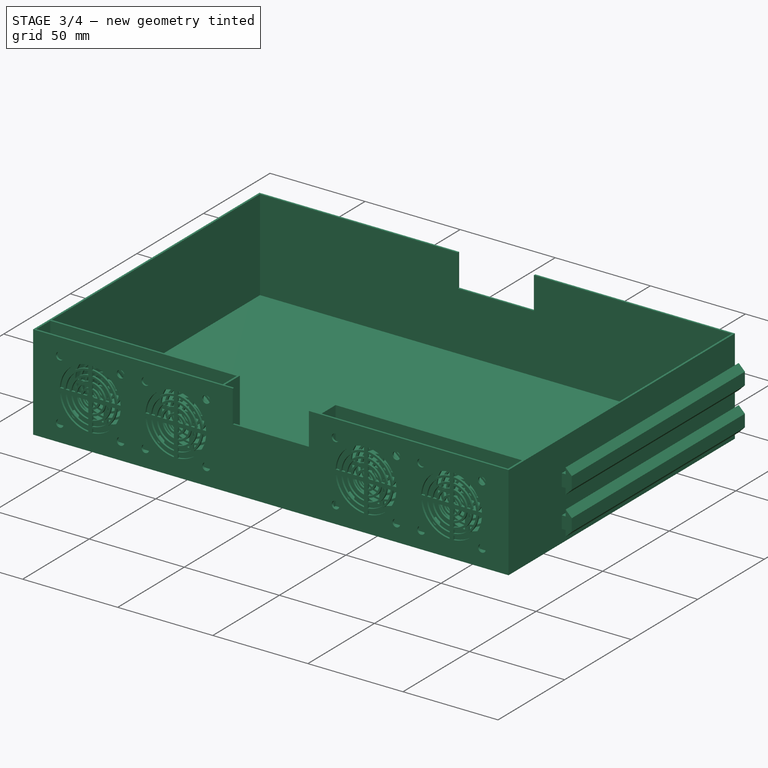
[diagram: stage 3 of 4 — iso view after this stage's code; geometry added in this stage tinted green]
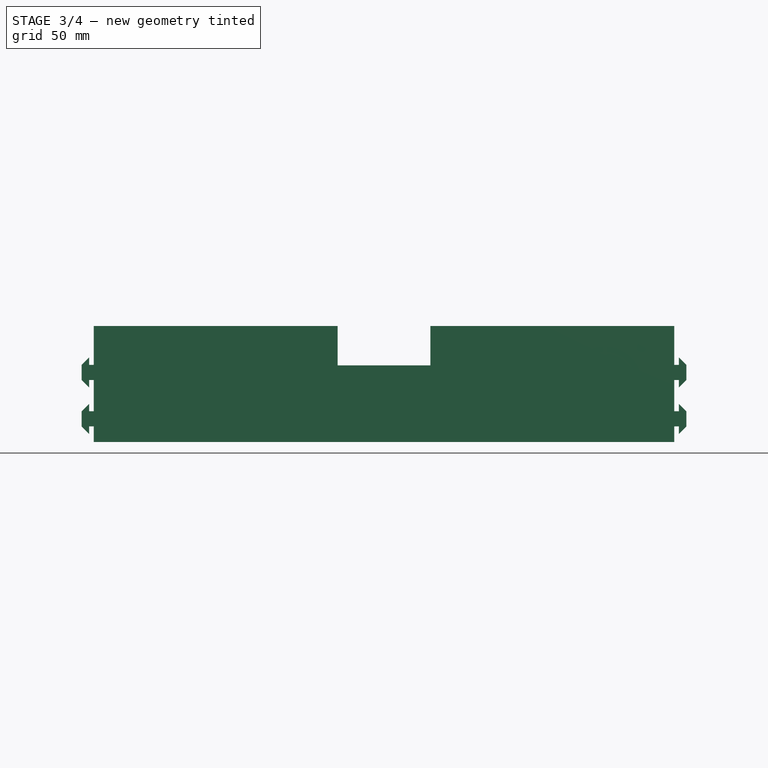
[diagram: stage 3 of 4 — front view after this stage's code; geometry added in this stage tinted green]
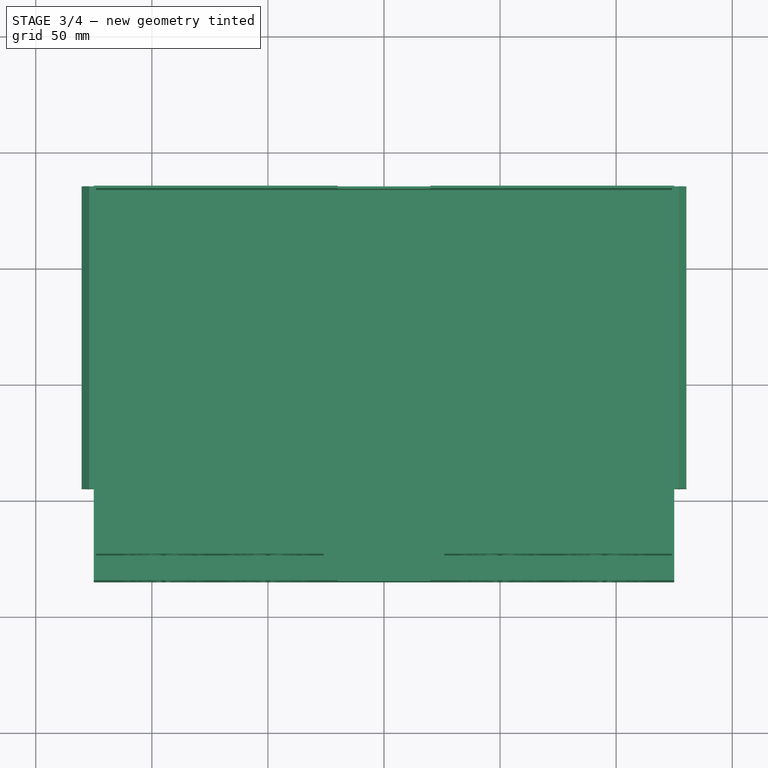
[diagram: stage 3 of 4 — top view after this stage's code; geometry added in this stage tinted green]
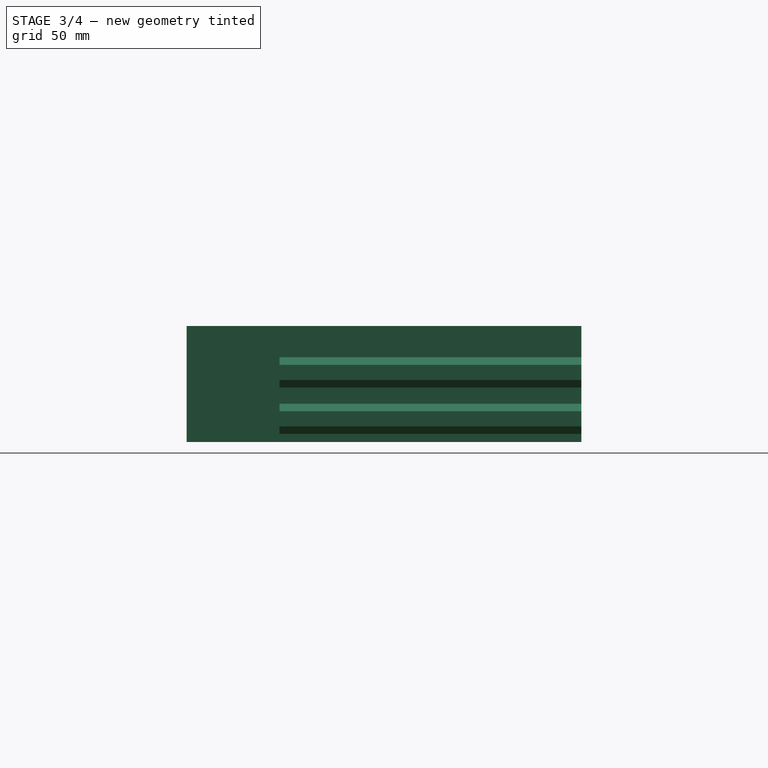
[diagram: stage 3 of 4 — right view after this stage's code; geometry added in this stage tinted green]
FEATURE [PartDesign::Mirrored] Mirrored001  label="Mirrored_fan_holes"
  BaseFeature = -> Pocket001
  MirrorPlane = -> YZ_Plane001
  Originals = -> [Pocket001]
FEATURE [Sketcher::SketchObject] Sketch020  label="fan_cable_duct"
  ExternalGeometry = -> [Mirrored001]
  MapMode = 5
  Placement = pos=(25,0,0) rot=(0.57735,-0.57735,-0.57735;2.0944rad)
  Support = -> [Mirrored001]
  sketch-geometry (4):
    g0: LineSegment StartX=83 StartY=2 StartZ=0 EndX=75 EndY=2 EndZ=0
    g1: LineSegment StartX=75 StartY=2 StartZ=0 EndX=75 EndY=12 EndZ=0
    g2: LineSegment StartX=75 StartY=12 StartZ=0 EndX=83 EndY=12 EndZ=0
    g3: LineSegment StartX=83 StartY=12 StartZ=0 EndX=83 EndY=2 EndZ=0
  constraints (12):
    c: Coincident(g0,g1)
    c: Coincident(g1,g2)
    c: Coincident(g2,g3)
    c: Coincident(g3,g0)
    c: Horizontal(g0)
    c: Horizontal(g2)
    c: Vertical(g1)
    c: Vertical(g3)
    c: Distance(g0) = 8
    c: Distance(g3) = 10
    c: PointOnObject(g0,g-3)
    c: Distance(g0,g-5) = 1
FEATURE [PartDesign::Pocket] Pocket002  label="fan_cable_duct_right"
  BaseFeature = -> Mirrored001
  Length = 5
  Length2 = 100
  Profile = -> Sketch020
  Type = 2
FEATURE [PartDesign::Mirrored] Mirrored002  label="fan_cable_duct_left"
  BaseFeature = -> Pocket002
  MirrorPlane = -> YZ_Plane001
  Originals = -> [Pocket002]
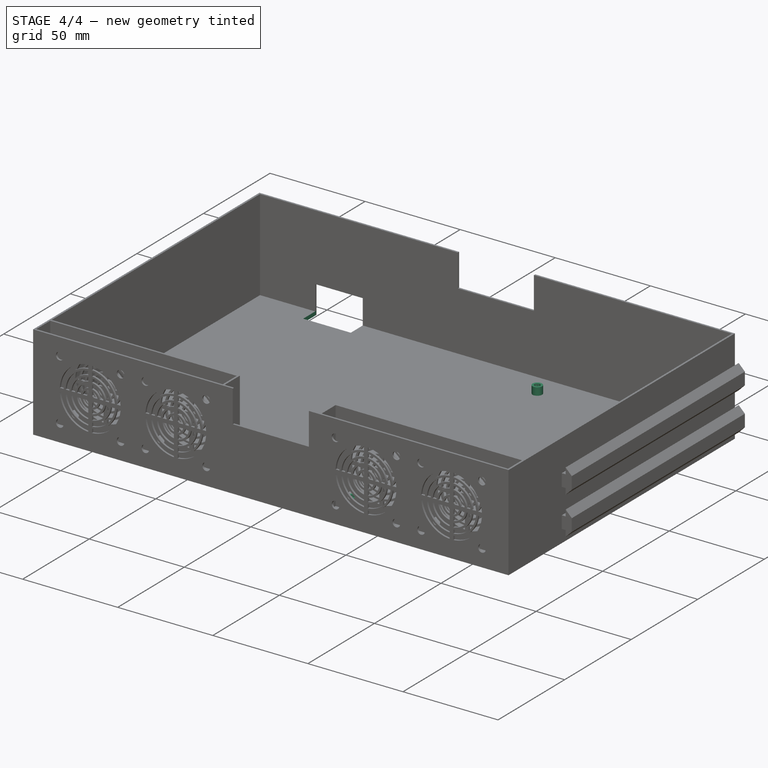
[diagram: stage 4 of 4 — iso view after this stage's code; geometry added in this stage tinted green]
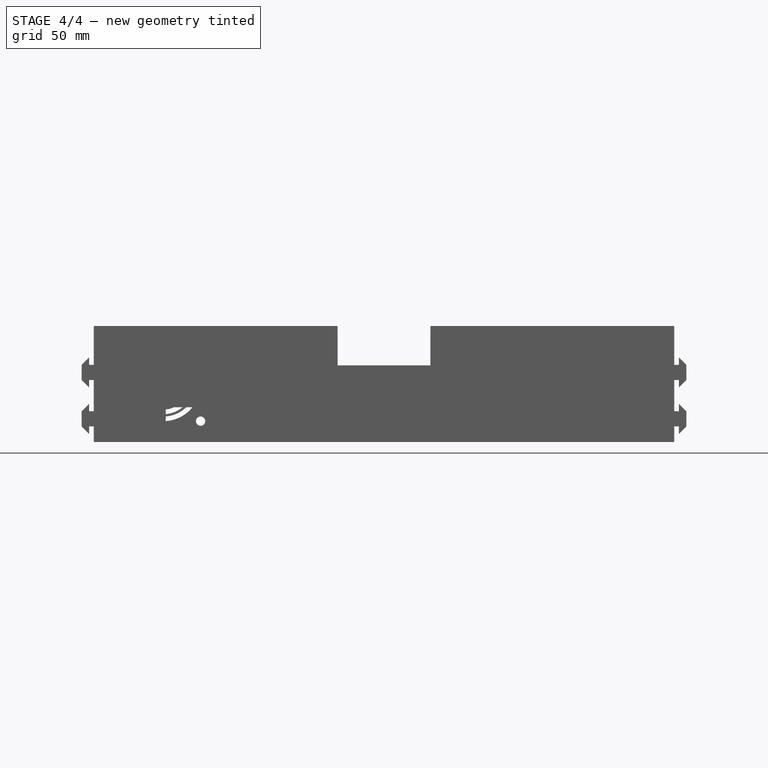
[diagram: stage 4 of 4 — front view after this stage's code; geometry added in this stage tinted green]
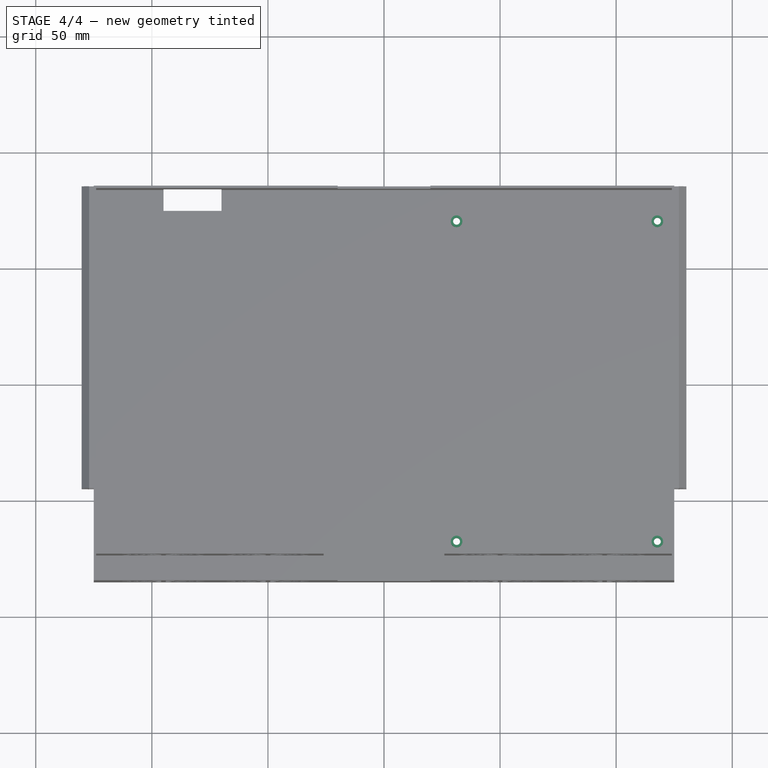
[diagram: stage 4 of 4 — top view after this stage's code; geometry added in this stage tinted green]
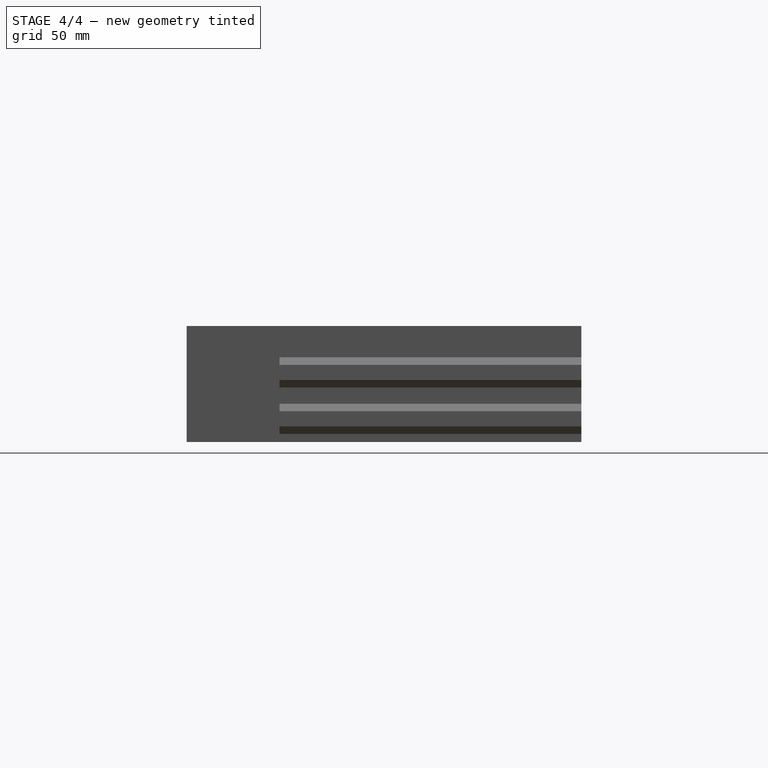
[diagram: stage 4 of 4 — right view after this stage's code; geometry added in this stage tinted green]
FEATURE [Sketcher::SketchObject] Sketch016  label="SKR_standoff"
  ExternalGeometry = -> [Mirrored002]
  MapMode = 5
  Placement = pos=(0,0,2) rot=(0,0,1;0rad)
  Support = -> [Mirrored002]
  sketch-geometry (8):
    g0: LineSegment [constr] StartX=31.25 StartY=-67.5 StartZ=0 EndX=117.75 EndY=-67.5 EndZ=0
    g1: LineSegment [constr] StartX=117.75 StartY=-67.5 StartZ=0 EndX=117.75 EndY=70.5 EndZ=0
    g2: LineSegment [constr] StartX=117.75 StartY=70.5 StartZ=0 EndX=31.25 EndY=70.5 EndZ=0
    g3: LineSegment [constr] StartX=31.25 StartY=70.5 StartZ=0 EndX=31.25 EndY=-67.5 EndZ=0
    g4: Circle CenterX=31.25 CenterY=70.5 CenterZ=0 NormalX=0 NormalY=0 NormalZ=1 AngleXU=0 Radius=2.5
    g5: Circle CenterX=117.75 CenterY=70.5 CenterZ=0 NormalX=0 NormalY=0 NormalZ=1 AngleXU=0 Radius=2.5
    g6: Circle CenterX=117.75 CenterY=-67.5 CenterZ=0 NormalX=0 NormalY=0 NormalZ=1 AngleXU=0 Radius=2.5
    g7: Circle CenterX=31.25 CenterY=-67.5 CenterZ=0 NormalX=0 NormalY=0 NormalZ=1 AngleXU=0 Radius=2.5
  constraints (22):
    c: Equal(g6,g7)
    c: Equal(g7,g5)
    c: Equal(g5,g4)
    c: Diameter(g4) = 5
    c: Horizontal(g0)
    c: Horizontal(g2)
    c: Vertical(g3)
    c: Vertical(g1)
    c: Coincident(g2,g3)
    c: Coincident(g0,g1)
    c: Coincident(g1,g2)
    c: Coincident(g0,g3)
    c: Distance(g2) = 86.5
    c: Distance(g1) = 138
    c: Coincident(g4,g2)
    c: Coincident(g5,g1)
    c: Coincident(g7,g0)
    c: Coincident(g6,g0)
    c: Distance(g6,g-3) = 5
    c: Distance(g6,g-4) = 6.25
    c: DistanceX(g-3,g7) = 6.25
    c: Distance(g5,g-5) = 13.5
FEATURE [PartDesign::Pad] Pad003  label="Pad_SKR_standoff"
  BaseFeature = -> Mirrored002
  Length = 4
  Length2 = 100
  Profile = -> Sketch016
  Type = 0
FEATURE [Sketcher::SketchObject] Sketch017  label="SKR_mountin_holes"
  ExternalGeometry = -> [Pad003]
  MapMode = 5
  Placement = pos=(0,0,6) rot=(0,0,1;0rad)
  Support = -> [Pad003]
  sketch-geometry (4):
    g0: Circle CenterX=31.25 CenterY=70.5 CenterZ=0 NormalX=0 NormalY=0 NormalZ=1 AngleXU=0 Radius=1.5
    g1: Circle CenterX=117.75 CenterY=70.5 CenterZ=0 NormalX=0 NormalY=0 NormalZ=1 AngleXU=0 Radius=1.5
    g2: Circle CenterX=31.25 CenterY=-67.5 CenterZ=0 NormalX=0 NormalY=0 NormalZ=1 AngleXU=0 Radius=1.5
    g3: Circle CenterX=117.75 CenterY=-67.5 CenterZ=0 NormalX=0 NormalY=0 NormalZ=1 AngleXU=0 Radius=1.5
  constraints (8):
    c: Diameter(g0) = 3
    c: Equal(g1,g0)
    c: Equal(g0,g2)
    c: Equal(g2,g3)
    c: Coincident(g-6,g3)
    c: Coincident(g-5,g2)
    c: Coincident(g0,g-3)
    c: Coincident(g1,g-4)
FEATURE [PartDesign::Pocket] Pocket003  label="Pocket_SKR_mounting_holes"
  BaseFeature = -> Pad003
  Length = 5
  Length2 = 100
  Profile = -> Sketch017
  Type = 1
FEATURE [Sketcher::SketchObject] Sketch021  label="Electric_cable_duct"
  ExternalGeometry = -> [Pocket003]
  MapMode = 5
  Placement = pos=(0,85,0) rot=(0,0.707107,0.707107;3.14159rad)
  Support = -> [Pocket003]
  sketch-geometry (4):
    g0: LineSegment StartX=70 StartY=0 StartZ=0 EndX=95 EndY=0 EndZ=0
    g1: LineSegment StartX=95 StartY=0 StartZ=0 EndX=95 EndY=15 EndZ=0
    g2: LineSegment StartX=95 StartY=15 StartZ=0 EndX=70 EndY=15 EndZ=0
    g3: LineSegment StartX=70 StartY=15 StartZ=0 EndX=70 EndY=0 EndZ=0
  constraints (12):
    c: Coincident(g0,g1)
    c: Coincident(g1,g2)
    c: Coincident(g2,g3)
    c: Coincident(g3,g0)
    c: Horizontal(g0)
    c: Horizontal(g2)
    c: Vertical(g1)
    c: Vertical(g3)
    c: PointOnObject(g0,g-1)
    c: Distance(g1,g-3) = 30
    c: Distance(g0) = 25
    c: Distance(g1) = 15
FEATURE [PartDesign::Pocket] Pocket004  label="Pocket_electric_fan_duct"
  BaseFeature = -> Pocket003
  Length = 10
  Length2 = 100
  Profile = -> Sketch021
  Type = 0
FEATURE [PartDesign::Body] Body001  label="Case_variant_1"
  Group = -> [Sketch010,Sketch011,Sketch,Sketch016,Sketch017,Sketch018,Sketch019,Pad,Pad001,Pad002,Mirrored,Pocket,Pocket001,Mirrored001,Sketch020,Pocket002,Mirrored002,Pad003,Pocket003,Sketch021,Pocket004]
  Origin = -> Origin001
  Placement = pos=(-163,0,0) rot=(0,0,1;0rad)
  Tip = -> Pocket004
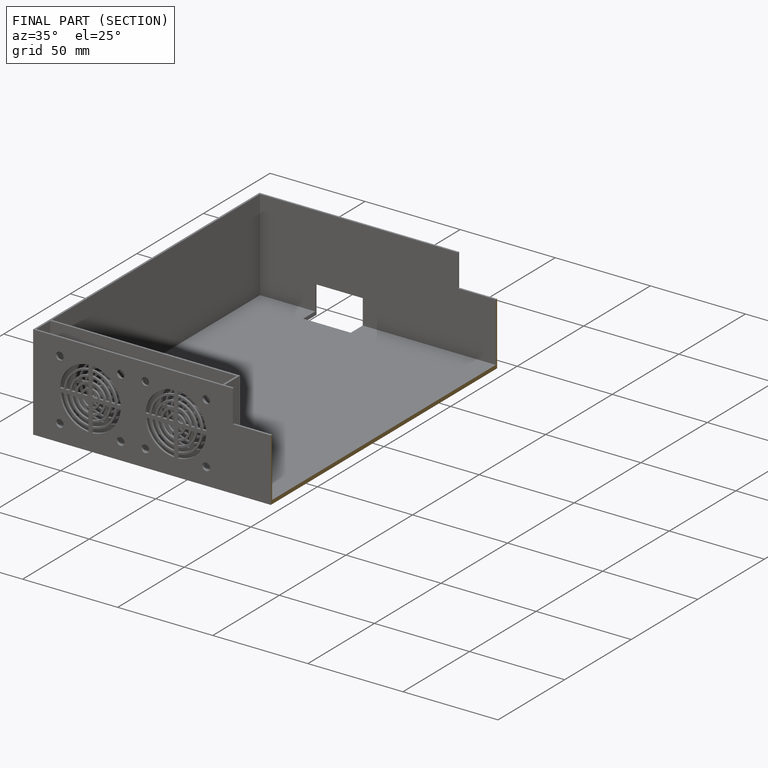
[diagram: finished part — half-section view (interior)]
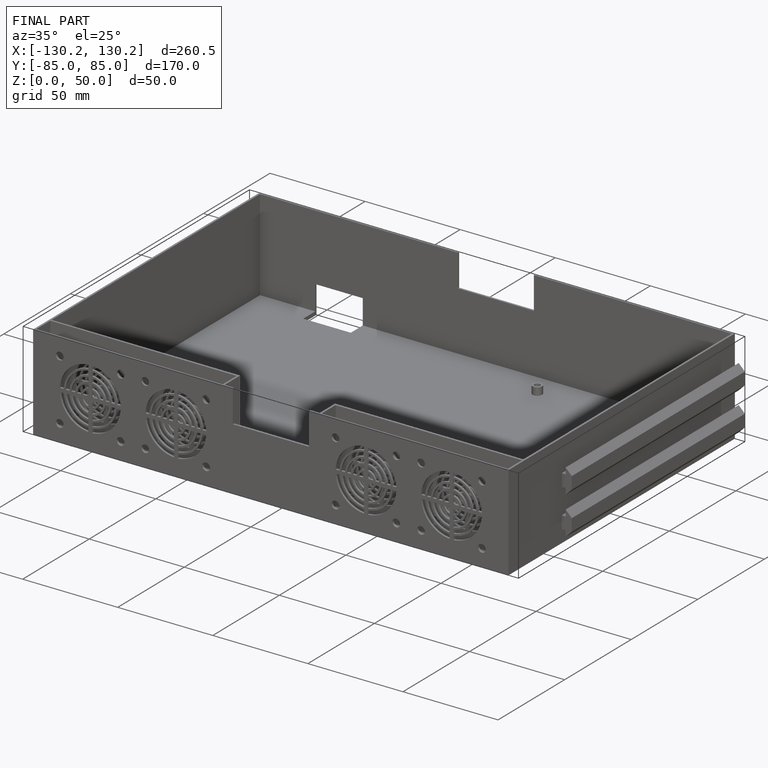
[diagram: finished part — iso view with bounding-box wireframe]
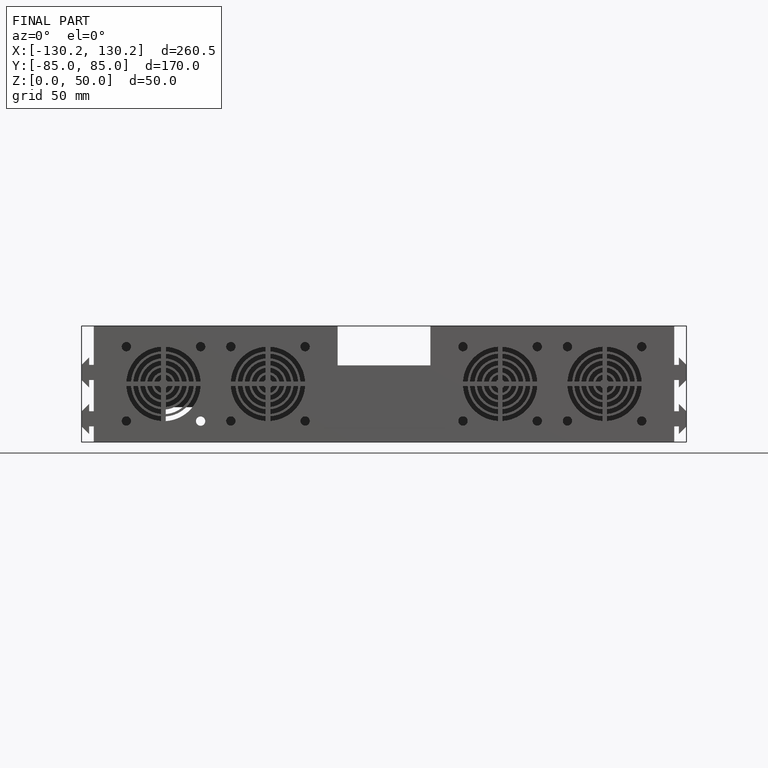
[diagram: finished part — front view with bounding-box wireframe]
